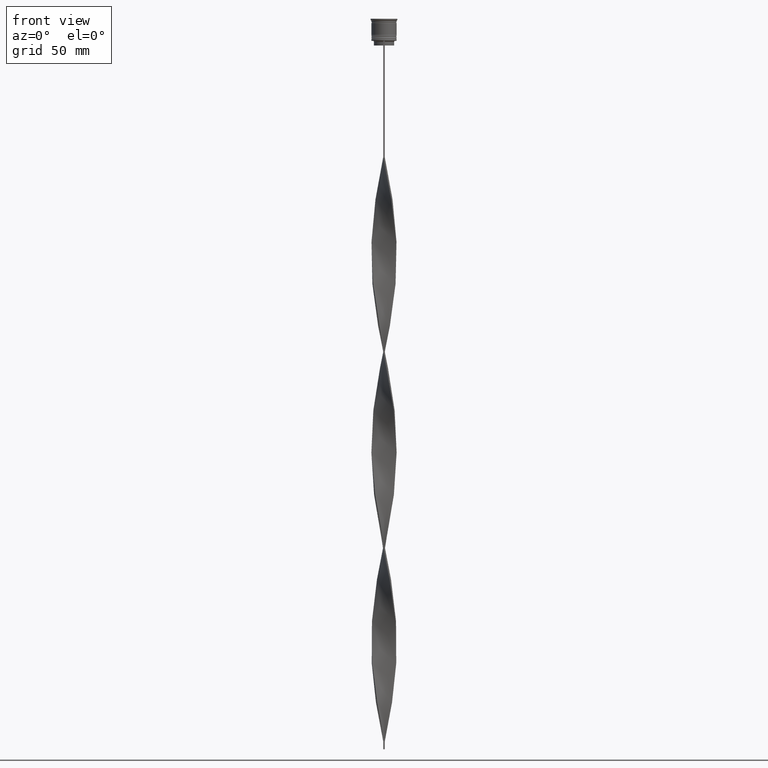
[diagram: clean part render]
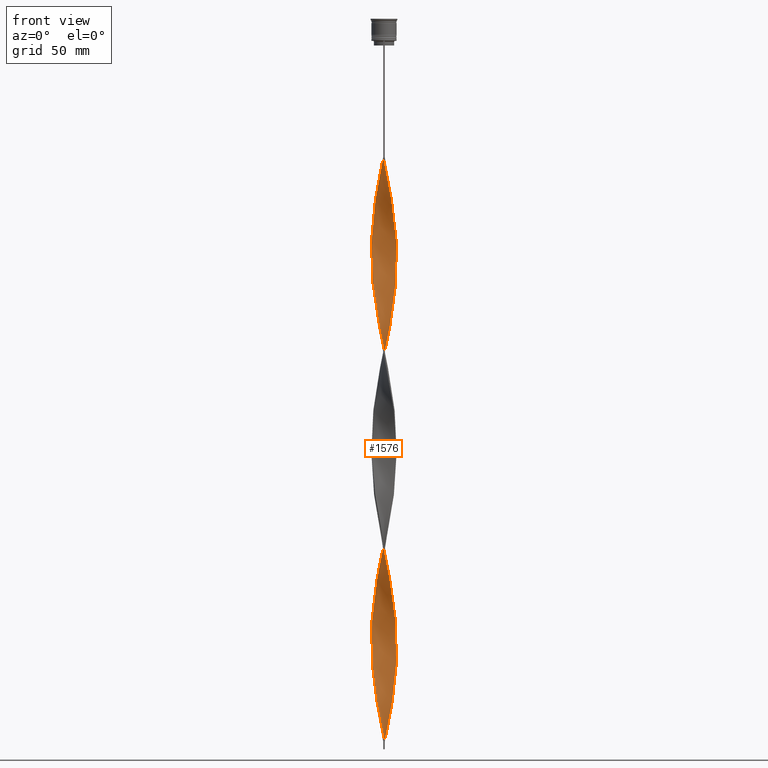
[diagram: same view with one face highlighted and labeled with its STEP entity id]
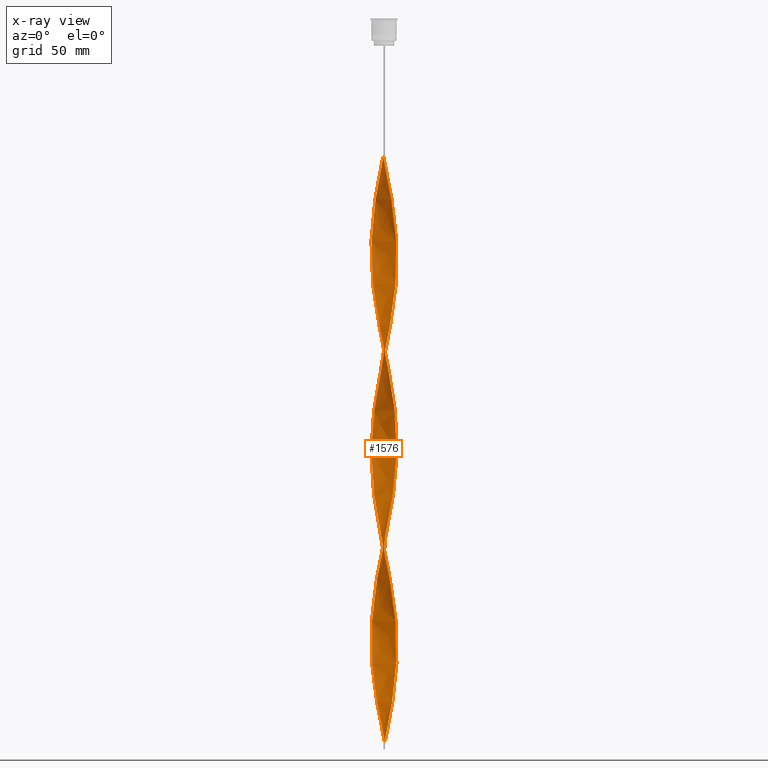
[diagram: x-ray of the same camera — body ghosted, the highlighted face saturated]
A machine part, front view. The second image highlights one B-rep face of the part: STEP entity #1576.
The next image is the same camera in x-ray: the body ghosted, the highlighted face saturated — about 0% of this face is hidden behind the body in this view.
In plain terms, the highlighted face is a freeform B-spline surface patch.
Its self-contained STEP definition (entity closure, byte-faithful):
#5 = CARTESIAN_POINT ( 'NONE',  ( 7.856552120720867727, 1.680833937442848480, -407.9202898550724399 ) ) ;
#10 = CARTESIAN_POINT ( 'NONE',  ( -6.187964285834326006, -5.095007163610167922, -303.0724637681159379 ) ) ;
#24 = CARTESIAN_POINT ( 'NONE',  ( 7.333114266084581168, 3.236577692648030968, -415.9855072463768124 ) ) ;
#29 = CARTESIAN_POINT ( 'NONE',  ( 5.505411142615667330, -5.825843127888297168, -367.5942028985506909 ) ) ;
#42 = CARTESIAN_POINT ( 'NONE',  ( 6.824099305140973293, 4.204957630413717062, -421.3623188405797464 ) ) ;
#48 = CARTESIAN_POINT ( 'NONE',  ( 7.333114266084581168, 3.236577692648030968, -415.9855072463768124 ) ) ;
#67 = CARTESIAN_POINT ( 'NONE',  ( -5.436559199960629307, 5.890146353472331064, -114.8840579710144851 ) ) ;
#73 = CARTESIAN_POINT ( 'NONE',  ( 7.155170220385205226, -3.654333464282639721, -381.0362318840579974 ) ) ;
#75 = EDGE_CURVE ( 'NONE', #2443, #830, #1071, .T. ) ;
#87 = CARTESIAN_POINT ( 'NONE',  ( 5.505411142615667330, 5.825843127888289175, -303.0724637681159379 ) ) ;
#91 = CARTESIAN_POINT ( 'NONE',  ( 7.730944694932269989, -2.117190148262233951, -389.1014492753622562 ) ) ;
#105 = ORIENTED_EDGE ( 'NONE', *, *, #486, .T. ) ;
#107 = CARTESIAN_POINT ( 'NONE',  ( -0.04721499136463833818, -8.034200936960285588, -208.9782608695651902 ) ) ;
#111 = CARTESIAN_POINT ( 'NONE',  ( 5.436559199960635524, 5.890146353472334617, -184.7826086956521578 ) ) ;
#121 = CARTESIAN_POINT ( 'NONE',  ( 4.134100453396767350, -6.889109332278575692, -230.4855072463767840 ) ) ;
#131 = CARTESIAN_POINT ( 'NONE',  ( 5.106912555500778161, 6.202423566746439576, -305.7608695652173196 ) ) ;
#148 = CARTESIAN_POINT ( 'NONE',  ( 7.111726286817905418, -3.738176450121948768, -251.9927536231884631 ) ) ;
#156 = CARTESIAN_POINT ( 'NONE',  ( 0.04721499136463920554, 8.034200936960285588, -332.6449275362318758 ) ) ;
#170 = CARTESIAN_POINT ( 'NONE',  ( -7.947228946841973674, -1.044773691512636438, -152.5217391304347530 ) ) ;
#176 = CARTESIAN_POINT ( 'NONE',  ( 2.122137340211640577, -7.749009424445332250, -219.7318840579710297 ) ) ;
#181 = CARTESIAN_POINT ( 'NONE',  ( 2.728603068017206645, -7.536890956966748156, -104.1304347826086882 ) ) ;
#189 = CARTESIAN_POINT ( 'NONE',  ( -3.645814369522656584, 7.138489867120500598, -104.1304347826086882 ) ) ;
#197 = CARTESIAN_POINT ( 'NONE',  ( -7.934400707984895718, 1.138106060579909817, -389.1014492753622562 ) ) ;
#203 = CARTESIAN_POINT ( 'NONE',  ( 6.536472323464036727, 4.671738810705485356, -176.7173913043478137 ) ) ;
#215 = CARTESIAN_POINT ( 'NONE',  ( 6.247418983026105543, -5.021927523424159823, -125.6376811594202820 ) ) ;
#219 = CARTESIAN_POINT ( 'NONE',  ( -7.856552120720863286, 1.680833937442849368, -139.0797101449275317 ) ) ;
#229 = CARTESIAN_POINT ( 'NONE',  ( -7.875764468519589556, -1.588379043952500291, -402.5434782608696196 ) ) ;
#233 = CARTESIAN_POINT ( 'NONE',  ( -7.934400707984904599, -1.138106060579906043, -281.5652173913043725 ) ) ;
#238 = CARTESIAN_POINT ( 'NONE',  ( -8.018693425164370225, 0.5011683390727743603, -273.4999999999999432 ) ) ;
#243 = CARTESIAN_POINT ( 'NONE',  ( -1.584676165788137636, 7.857404243742519334, -340.7101449275362484 ) ) ;
#255 = CARTESIAN_POINT ( 'NONE',  ( 2.213065603025611949, -7.723532520004569690, -348.7753623188405072 ) ) ;
#259 = CARTESIAN_POINT ( 'NONE',  ( 7.947228946841980779, -1.044773691512637548, -147.1449275362318758 ) ) ;
#262 = CARTESIAN_POINT ( 'NONE',  ( -4.583881302556711113, 6.575563261354189670, -356.8405797101449366 ) ) ;
#275 = CARTESIAN_POINT ( 'NONE',  ( -7.155170220385204338, 3.654333464282641941, -257.3695652173913118 ) ) ;
#282 = CARTESIAN_POINT ( 'NONE',  ( 7.875764468519596662, -1.588379043952502734, -144.4565217391304657 ) ) ;
#285 = CARTESIAN_POINT ( 'NONE',  ( -3.157528285648546706, 7.387870401962427280, -348.7753623188405641 ) ) ;
#290 = CARTESIAN_POINT ( 'NONE',  ( -6.873049228353423246, -4.124462911050403413, -415.9855072463768124 ) ) ;
#298 = CARTESIAN_POINT ( 'NONE',  ( -0.04721499136463313401, 8.034200936960292694, -214.3550724637681242 ) ) ;
#305 = CARTESIAN_POINT ( 'NONE',  ( 5.033662151716659316, 6.262017190429808977, -187.4710144927535964 ) ) ;
#307 = CARTESIAN_POINT ( 'NONE',  ( 7.730944694932264660, 2.117190148262227289, -281.5652173913043725 ) ) ;
#316 = CARTESIAN_POINT ( 'NONE',  ( -5.839456248204613509, -5.518275516514857593, -305.7608695652173196 ) ) ;
#322 = CARTESIAN_POINT ( 'NONE',  ( 7.370647570865074272, -3.150167358427301334, -136.3913043478260931 ) ) ;
#324 = CARTESIAN_POINT ( 'NONE',  ( 2.213065603025612393, 7.723532520004561697, -321.8913043478260647 ) ) ;
#332 = CARTESIAN_POINT ( 'NONE',  ( -7.730944694932262884, -2.117190148262229510, -157.8985507246376585 ) ) ;
#338 = CARTESIAN_POINT ( 'NONE',  ( 5.839456248204609956, 5.518275516514862034, -429.4275362318840621 ) ) ;
#342 = VECTOR ( 'NONE', #2603, 1000.000000000000000 ) ;
#346 = CARTESIAN_POINT ( 'NONE',  ( -3.244140533008800009, -7.350249393928923958, -440.1811594202898164 ) ) ;
#358 = CARTESIAN_POINT ( 'NONE',  ( 6.873049228353429463, -4.124462911050406966, -378.3478260869565020 ) ) ;
#363 = CARTESIAN_POINT ( 'NONE',  ( 7.370647570865074272, -3.150167358427301334, -383.7246376811593791 ) ) ;
#376 = CARTESIAN_POINT ( 'NONE',  ( -8.018693425164364896, -0.5011683390727723619, -149.8333333333332860 ) ) ;
#382 = CARTESIAN_POINT ( 'NONE',  ( -3.157528285648551147, -7.387870401962433498, -321.8913043478260647 ) ) ;
#398 = CARTESIAN_POINT ( 'NONE',  ( -7.705527183036052996, 2.207906436308479492, -136.3913043478260931 ) ) ;
#403 = CARTESIAN_POINT ( 'NONE',  ( 2.122137340211643686, 7.749009424445339356, -450.9347826086956275 ) ) ;
#424 = CARTESIAN_POINT ( 'NONE',  ( 7.947228946841980779, -1.044773691512637548, -394.4782608695651902 ) ) ;
#429 = CARTESIAN_POINT ( 'NONE',  ( 7.586124921344943317, -2.646001252571963835, -386.4130434782609314 ) ) ;
#433 = CARTESIAN_POINT ( 'NONE',  ( 0.4999999999999989453, -7.999999999999996447, -458.9999999999999432 ) ) ;
#442 = ORIENTED_EDGE ( 'NONE', *, *, #1463, .F. ) ;
#444 = CARTESIAN_POINT ( 'NONE',  ( 2.728603068017207534, 7.536890956966740163, -319.2028985507245693 ) ) ;
#448 = CARTESIAN_POINT ( 'NONE',  ( 5.106912555500779050, -6.202423566746448458, -117.5724637681159379 ) ) ;
#459 = CARTESIAN_POINT ( 'NONE',  ( 3.157528285648546706, -7.387870401962427280, -225.1086956521739353 ) ) ;
#464 = CARTESIAN_POINT ( 'NONE',  ( 2.213065603025612393, 7.723532520004562585, -321.8913043478260647 ) ) ;
#469 = CARTESIAN_POINT ( 'NONE',  ( 0.5939902197518079907, -7.993570892838771869, -93.37681159420290555 ) ) ;
#480 = CARTESIAN_POINT ( 'NONE',  ( -6.873049228353423246, -4.124462911050403413, -168.6521739130434696 ) ) ;
#486 = EDGE_CURVE ( 'NONE', #1112, #2443, #1568, .T. ) ;
#491 = CARTESIAN_POINT ( 'NONE',  ( -3.729461898010225429, -7.095147211389621233, -190.1594202898550634 ) ) ;
#504 = CARTESIAN_POINT ( 'NONE',  ( -7.586124921344937988, -2.646001252571960283, -160.5869565217391539 ) ) ;
#510 = CARTESIAN_POINT ( 'NONE',  ( -2.213065603025611949, -7.723532520004562585, -198.2246376811594359 ) ) ;
#514 = CARTESIAN_POINT ( 'NONE',  ( 0.04721499136463627733, -8.034200936960292694, -90.68840579710145278 ) ) ;
#519 = CARTESIAN_POINT ( 'NONE',  ( 1.676915525582295841, -7.838236684360910367, -98.75362318840578268 ) ) ;
#523 = CARTESIAN_POINT ( 'NONE',  ( -6.590928236321648370, -4.594592357818170214, -171.3405797101449366 ) ) ;
#536 = CARTESIAN_POINT ( 'NONE',  ( 7.111726286817910747, 3.738176450121950101, -171.3405797101449366 ) ) ;
#543 = CARTESIAN_POINT ( 'NONE',  ( -7.730944694932262884, -2.117190148262229510, -157.8985507246376585 ) ) ;
#551 = CARTESIAN_POINT ( 'NONE',  ( -6.536472323464030509, 4.671738810705480915, -370.2826086956521863 ) ) ;
#558 = CARTESIAN_POINT ( 'NONE',  ( -3.157528285648551147, -7.387870401962433498, -321.8913043478260647 ) ) ;
#566 = CARTESIAN_POINT ( 'NONE',  ( -6.873049228353427686, 4.124462911050410518, -254.6811594202898448 ) ) ;
#569 = CARTESIAN_POINT ( 'NONE',  ( -5.436559199960629307, 5.890146353472331064, -362.2173913043478137 ) ) ;
#581 = CARTESIAN_POINT ( 'NONE',  ( -7.370647570865074272, 3.150167358427302222, -260.0579710144927503 ) ) ;
#587 = CARTESIAN_POINT ( 'NONE',  ( 0.5000000000000008882, 8.000000000000003553, -211.6666666666666572 ) ) ;
#591 = CARTESIAN_POINT ( 'NONE',  ( -1.047214991364635805, 7.965799063039706418, -338.0217391304347530 ) ) ;
#598 = CARTESIAN_POINT ( 'NONE',  ( -4.660847909256212063, -6.521234297798381263, -432.1159420289855007 ) ) ;
#602 = CARTESIAN_POINT ( 'NONE',  ( -1.140765448138979510, 7.952940848717255484, -219.7318840579710297 ) ) ;
#607 = CARTESIAN_POINT ( 'NONE',  ( 2.639832812930094530, 7.568439913203885538, -200.9130434782608745 ) ) ;
#608 = ORIENTED_EDGE ( 'NONE', *, *, #75, .T. ) ;
#611 = CARTESIAN_POINT ( 'NONE',  ( -7.705527183036052996, 2.207906436308479492, -383.7246376811593791 ) ) ;
#618 = CARTESIAN_POINT ( 'NONE',  ( -7.730944694932262884, -2.117190148262229510, -405.2318840579709445 ) ) ;
#623 = CARTESIAN_POINT ( 'NONE',  ( -7.586124921344943317, 2.646001252571963391, -262.7463768115941889 ) ) ;
#628 = CARTESIAN_POINT ( 'NONE',  ( -0.4999999999999998890, -8.000000000000003553, -88.00000000000000000 ) ) ;
#631 = CARTESIAN_POINT ( 'NONE',  ( -7.705527183036060102, -2.207906436308479936, -286.9420289855072497 ) ) ;
#634 = CARTESIAN_POINT ( 'NONE',  ( 7.155170220385199897, 3.654333464282636612, -289.6304347826086882 ) ) ;
#635 = CARTESIAN_POINT ( 'NONE',  ( 0.5000000000000008882, 8.000000000000003553, -458.9999999999999432 ) ) ;
#646 = CARTESIAN_POINT ( 'NONE',  ( -7.875764468519593109, 1.588379043952506731, -268.1231884057971797 ) ) ;
#653 = CARTESIAN_POINT ( 'NONE',  ( 7.856552120720868615, 1.680833937442848480, -160.5869565217391539 ) ) ;
#655 = CARTESIAN_POINT ( 'NONE',  ( -4.660847909256212063, -6.521234297798381263, -432.1159420289855007 ) ) ;
#663 = CARTESIAN_POINT ( 'NONE',  ( -7.947228946841973674, -1.044773691512636438, -152.5217391304347530 ) ) ;
#669 = CARTESIAN_POINT ( 'NONE',  ( -4.583881302556714665, -6.575563261354195888, -313.8260869565216922 ) ) ;
#680 = CARTESIAN_POINT ( 'NONE',  ( 7.370647570865074272, -3.150167358427301334, -383.7246376811593791 ) ) ;
#686 = CARTESIAN_POINT ( 'NONE',  ( 2.728603068017206645, -7.536890956966748156, -351.4637681159420595 ) ) ;
#705 = CARTESIAN_POINT ( 'NONE',  ( -5.033662151716653987, 6.262017190429803648, -112.1956521739130466 ) ) ;
#709 = CARTESIAN_POINT ( 'NONE',  ( -0.4999999999999998890, -8.000000000000003553, -335.3333333333333144 ) ) ;
#725 = CARTESIAN_POINT ( 'NONE',  ( -2.639832812930093198, 7.568439913203879321, -98.75362318840578268 ) ) ;
#730 = CARTESIAN_POINT ( 'NONE',  ( 6.187964285834324230, 5.095007163610171474, -426.7391304347826235 ) ) ;
#742 = EDGE_CURVE ( 'NONE', #1018, #830, #2607, .T. ) ;
#744 = CARTESIAN_POINT ( 'NONE',  ( -7.934400707984895718, 1.138106060579909817, -141.7681159420289703 ) ) ;
#750 = CARTESIAN_POINT ( 'NONE',  ( -3.729461898010225429, -7.095147211389621233, -437.4927536231883778 ) ) ;
#765 = CARTESIAN_POINT ( 'NONE',  ( -6.247418983026100214, -5.021927523424156270, -174.0289855072463752 ) ) ;
#784 = CARTESIAN_POINT ( 'NONE',  ( 7.333114266084573174, -3.236577692648032745, -254.6811594202898448 ) ) ;
#788 = CARTESIAN_POINT ( 'NONE',  ( 3.645814369522662357, 7.138489867120505039, -195.5362318840579405 ) ) ;
#799 = CARTESIAN_POINT ( 'NONE',  ( -6.536472323464030509, 4.671738810705480915, -122.9492753623188577 ) ) ;
#804 = CARTESIAN_POINT ( 'NONE',  ( -1.047214991364636028, 7.965799063039706418, -338.0217391304347530 ) ) ;
#808 = CARTESIAN_POINT ( 'NONE',  ( 7.875764468519596662, -1.588379043952502512, -144.4565217391304657 ) ) ;
#817 = CARTESIAN_POINT ( 'NONE',  ( -7.370647570865068055, -3.150167358427297781, -163.2753623188405641 ) ) ;
#828 = CARTESIAN_POINT ( 'NONE',  ( 7.155170220385199897, 3.654333464282636612, -289.6304347826086882 ) ) ;
#830 = VERTEX_POINT ( 'NONE', #2474 ) ;
#835 = CARTESIAN_POINT ( 'NONE',  ( 6.873049228353429463, -4.124462911050406966, -131.0144927536231876 ) ) ;
#845 = CARTESIAN_POINT ( 'NONE',  ( -7.705527183036052996, 2.207906436308479492, -136.3913043478260931 ) ) ;
#853 = CARTESIAN_POINT ( 'NONE',  ( 4.583881302556708448, -6.575563261354191447, -233.1739130434782510 ) ) ;
#858 = CARTESIAN_POINT ( 'NONE',  ( 7.705527183036060102, 2.207906436308480380, -163.2753623188405641 ) ) ;
#864 = CARTESIAN_POINT ( 'NONE',  ( 5.505411142615667330, -5.825843127888297168, -120.2608695652173907 ) ) ;
#867 = CARTESIAN_POINT ( 'NONE',  ( -5.839456248204605515, 5.518275516514856704, -117.5724637681159521 ) ) ;
#875 = CARTESIAN_POINT ( 'NONE',  ( -4.214783263011646852, -6.840045028850322062, -434.8043478260869961 ) ) ;
#880 = CARTESIAN_POINT ( 'NONE',  ( -7.333114266084582944, -3.236577692648026527, -292.3188405797101268 ) ) ;
#890 = CARTESIAN_POINT ( 'NONE',  ( 7.856552120720863286, -1.680833937442848036, -262.7463768115941889 ) ) ;
#891 = CARTESIAN_POINT ( 'NONE',  ( 0.4999999999999989453, -7.999999999999996447, -458.9999999999999432 ) ) ;
#907 = CARTESIAN_POINT ( 'NONE',  ( 1.676915525582295841, -7.838236684360910367, -346.0869565217391255 ) ) ;
#916 = CARTESIAN_POINT ( 'NONE',  ( -6.824099305140974181, -4.204957630413716174, -297.6956521739130039 ) ) ;
#919 = CARTESIAN_POINT ( 'NONE',  ( 7.586124921344937988, 2.646001252571958950, -284.2536231884058111 ) ) ;
#926 = CARTESIAN_POINT ( 'NONE',  ( -6.590928236321648370, -4.594592357818170214, -418.6739130434783078 ) ) ;
#930 = CARTESIAN_POINT ( 'NONE',  ( -4.583881302556714665, -6.575563261354195888, -313.8260869565216922 ) ) ;
#938 = CARTESIAN_POINT ( 'NONE',  ( -7.947228946841980779, 1.044773691512640434, -270.8115942028985614 ) ) ;
#943 = CARTESIAN_POINT ( 'NONE',  ( 8.015471360206644746, -0.04710492232210114483, -270.8115942028985614 ) ) ;
#949 = CARTESIAN_POINT ( 'NONE',  ( -7.111726286817904530, 3.738176450121948324, -375.6594202898551771 ) ) ;
#954 = CARTESIAN_POINT ( 'NONE',  ( -5.903909729730557387, 5.449262689030150320, -246.6159420289854722 ) ) ;
#957 = CARTESIAN_POINT ( 'NONE',  ( -8.012249295248937031, -0.5953781837169641600, -278.8768115942028771 ) ) ;
#959 = CARTESIAN_POINT ( 'NONE',  ( -7.370647570865068055, -3.150167358427297781, -410.6086956521738216 ) ) ;
#965 = CARTESIAN_POINT ( 'NONE',  ( 0.4999999999999989453, -7.999999999999996447, -458.9999999999999432 ) ) ;
#972 = CARTESIAN_POINT ( 'NONE',  ( -2.213065603025611949, 7.723532520004569690, -225.1086956521739353 ) ) ;
#981 = CARTESIAN_POINT ( 'NONE',  ( -8.015471360206651852, -0.04710492232209864683, -276.1884057971014386 ) ) ;
#985 = CARTESIAN_POINT ( 'NONE',  ( -3.645814369522656584, 7.138489867120500598, -351.4637681159420595 ) ) ;
#997 = CARTESIAN_POINT ( 'NONE',  ( -1.047214991364636028, 7.965799063039706418, -90.68840579710145278 ) ) ;
#1004 = CARTESIAN_POINT ( 'NONE',  ( -6.247418983026105543, 5.021927523424160711, -249.3043478260869392 ) ) ;
#1016 = CARTESIAN_POINT ( 'NONE',  ( -0.4999999999999998890, 7.999999999999996447, -88.00000000000000000 ) ) ;
#1018 = VERTEX_POINT ( 'NONE', #635 ) ;
#1021 = CARTESIAN_POINT ( 'NONE',  ( -1.047214991364639802, -7.965799063039713523, -332.6449275362318758 ) ) ;
#1034 = CARTESIAN_POINT ( 'NONE',  ( -1.584676165788137636, 7.857404243742519334, -93.37681159420290555 ) ) ;
#1039 = CARTESIAN_POINT ( 'NONE',  ( 8.015471360206651852, 0.04710492232209777946, -399.8550724637680673 ) ) ;
#1057 = CARTESIAN_POINT ( 'NONE',  ( 2.639832812930094530, 7.568439913203885538, -448.2463768115941889 ) ) ;
#1062 = CARTESIAN_POINT ( 'NONE',  ( -6.536472323464036727, -4.671738810705484468, -300.3840579710145562 ) ) ;
#1071 =( BOUNDED_CURVE ( )  B_SPLINE_CURVE ( 2, ( #3688, #2473, #3186, #1857, #3168, #3148, #189, #2122, #2165, #2207, #3527, #867, #2884, #799, #1478, #4190, #2454, #1528, #845, #219, #2857, #2140, #1201, #1223, #170, #3488, #543, #504, #817, #3466, #480, #523, #2520, #3804, #3850, #4210, #1877, #3120, #1502, #1837, #3211, #2809, #2829, #1817, #1554, #2542, #3832, #3875, #3447, #2499, #4140, #459, #1794, #121, #2187, #4118, #4162, #1455, #2788, #1133, #3785, #148, #1178, #1153, #3506, #890, #3904, #3599, #943, #1941, #2259, #4232, #307, #919, #3558, #634, #2629, #4281, #1243, #2610, #1592, #3273, #1639, #3965, #2969, #3249, #3315, #324, #4260, #3581, #2590, #2926, #1270, #591, #243, #2234, #2652, #285, #985, #1325, #262, #3617, #569, #3923, #2278, #1303, #1287, #3943, #4323, #1572, #611, #1657, #1618, #1989, #2903, #1903, #3232, #2952, #1922, #2986, #959, #2294, #2320, #1968, #3297, #2564, #4301, #3640, #655, #2051, #750, #346, #3095, #2099, #2354, #3678, #3377, #3423, #433 ),
 .UNSPECIFIED., .F., .T. ) 
 B_SPLINE_CURVE_WITH_KNOTS ( ( 3, 2, 2, 2, 2, 2, 2, 2, 2, 2, 2, 2, 2, 2, 2, 2, 2, 2, 2, 2, 2, 2, 2, 2, 2, 2, 2, 2, 2, 2, 2, 2, 2, 2, 2, 2, 2, 2, 2, 2, 2, 2, 2, 2, 2, 2, 2, 2, 2, 2, 2, 2, 2, 2, 2, 2, 2, 2, 2, 2, 2, 2, 2, 2, 2, 2, 2, 2, 2, 3 ),
 ( 0.000000000000000000, 0.01086956521739130405, 0.02173913043478260809, 0.03260869565217391214, 0.04347826086956521618, 0.05434782608695652023, 0.06521739130434782428, 0.07608695652173913526, 0.08695652173913043237, 0.09782608695652174335, 0.1086956521739130405, 0.1195652173913043653, 0.1304347826086956486, 0.1413043478260869457, 0.1521739130434782705, 0.1630434782608695676, 0.1739130434782608647, 0.1847826086956521896, 0.1956521739130434867, 0.2065217391304347838, 0.2173913043478260809, 0.2282608695652173780, 0.2391304347826087306, 0.2500000000000000000, 0.2608695652173912971, 0.2717391304347825942, 0.2826086956521738913, 0.2934782608695652439, 0.3043478260869565410, 0.3152173913043478382, 0.3260869565217391353, 0.3369565217391304324, 0.3478260869565217295, 0.3586956521739130266, 0.3695652173913043792, 0.3804347826086956208, 0.3913043478260869734, 0.4021739130434782705, 0.4130434782608695676, 0.4239130434782609202, 0.4347826086956521618, 0.4456521739130434590, 0.4565217391304347561, 0.4673913043478261087, 0.4782608695652174613, 0.4891304347826087029, 0.5000000000000000000, 0.5108695652173913526, 0.5217391304347825942, 0.5326086956521739468, 0.5434782608695651884, 0.5543478260869565410, 0.5652173913043477826, 0.5760869565217391353, 0.5869565217391304879, 0.5978260869565217295, 0.6086956521739130821, 0.6195652173913043237, 0.6304347826086956763, 0.6413043478260869179, 0.6521739130434782705, 0.6630434782608695121, 0.6739130434782608647, 0.6847826086956522174, 0.6956521739130434590, 0.7065217391304349226, 0.7173913043478260532, 0.7282608695652174058, 0.7391304347826087584, 0.7500000000000000000 ),
 .UNSPECIFIED. ) 
 CURVE ( )  GEOMETRIC_REPRESENTATION_ITEM ( )  RATIONAL_B_SPLINE_CURVE ( ( 1.000000000000000000, 0.9976687691905391508, 1.000000000000000000, 0.9976687691905391508, 1.000000000000000000, 0.9976687691905391508, 1.000000000000000000, 0.9976687691905391508, 1.000000000000000000, 0.9976687691905391508, 1.000000000000000000, 0.9976687691905391508, 1.000000000000000000, 0.9976687691905391508, 1.000000000000000000, 0.9976687691905391508, 1.000000000000000000, 0.9976687691905391508, 1.000000000000000000, 0.9976687691905391508, 1.000000000000000000, 0.9976687691905391508, 1.000000000000000000, 0.9976687691905391508, 1.000000000000000000, 0.9976687691905391508, 1.000000000000000000, 0.9976687691905391508, 1.000000000000000000, 0.9976687691905391508, 1.000000000000000000, 0.9976687691905391508, 1.000000000000000000, 0.9976687691905391508, 1.000000000000000000, 0.9976687691905391508, 1.000000000000000000, 0.9976687691905391508, 1.000000000000000000, 0.9976687691905391508, 1.000000000000000000, 0.9976687691905391508, 1.000000000000000000, 0.9976687691905391508, 1.000000000000000000, 0.9976687691905391508, 1.000000000000000000, 0.9976687691905391508, 1.000000000000000000, 0.9976687691905391508, 1.000000000000000000, 0.9976687691905391508, 1.000000000000000000, 0.9976687691905391508, 1.000000000000000000, 0.9976687691905391508, 1.000000000000000000, 0.9976687691905391508, 1.000000000000000000, 0.9976687691905391508, 1.000000000000000000, 0.9976687691905391508, 1.000000000000000000, 0.9976687691905391508, 1.000000000000000000, 0.9976687691905391508, 1.000000000000000000, 0.9976687691905391508, 1.000000000000000000, 0.9976687691905391508, 1.000000000000000000, 0.9976687691905391508, 1.000000000000000000, 0.9976687691905391508, 1.000000000000000000, 0.9976687691905391508, 1.000000000000000000, 0.9976687691905391508, 1.000000000000000000, 0.9976687691905391508, 1.000000000000000000, 0.9976687691905391508, 1.000000000000000000, 0.9976687691905391508, 1.000000000000000000, 0.9976687691905391508, 1.000000000000000000, 0.9976687691905391508, 1.000000000000000000, 0.9976687691905391508, 1.000000000000000000, 0.9976687691905391508, 1.000000000000000000, 0.9976687691905391508, 1.000000000000000000, 0.9976687691905391508, 1.000000000000000000, 0.9976687691905391508, 1.000000000000000000, 0.9976687691905391508, 1.000000000000000000, 0.9976687691905391508, 1.000000000000000000, 0.9976687691905391508, 1.000000000000000000, 0.9976687691905391508, 1.000000000000000000, 0.9976687691905391508, 1.000000000000000000, 0.9976687691905391508, 1.000000000000000000, 0.9976687691905391508, 1.000000000000000000, 0.9976687691905391508, 1.000000000000000000, 0.9976687691905391508, 1.000000000000000000, 0.9976687691905391508, 1.000000000000000000, 0.9976687691905391508, 1.000000000000000000, 0.9976687691905391508, 1.000000000000000000, 0.9976687691905391508, 1.000000000000000000, 0.9976687691905391508, 1.000000000000000000, 0.9976687691905391508, 1.000000000000000000, 0.9976687691905391508, 1.000000000000000000, 0.9976687691905391508, 1.000000000000000000, 0.9976687691905391508, 1.000000000000000000, 0.9976687691905391508, 1.000000000000000000, 0.9976687691905391508, 1.000000000000000000 ) ) 
 REPRESENTATION_ITEM ( '' )  );
#1078 = CARTESIAN_POINT ( 'NONE',  ( 7.705527183036060102, 2.207906436308480380, -410.6086956521738216 ) ) ;
#1083 = CARTESIAN_POINT ( 'NONE',  ( 6.873049228353429463, -4.124462911050406966, -378.3478260869565020 ) ) ;
#1096 = CARTESIAN_POINT ( 'NONE',  ( 4.214783263011647740, 6.840045028850321174, -311.1376811594204241 ) ) ;
#1101 = CARTESIAN_POINT ( 'NONE',  ( 2.213065603025611949, -7.723532520004569690, -101.4420289855072497 ) ) ;
#1112 = VERTEX_POINT ( 'NONE', #3030 ) ;
#1123 = CARTESIAN_POINT ( 'NONE',  ( -1.140765448138979954, -7.952940848717248379, -203.6014492753623415 ) ) ;
#1133 = CARTESIAN_POINT ( 'NONE',  ( 6.536472323464028733, -4.671738810705482692, -246.6159420289854722 ) ) ;
#1139 = CARTESIAN_POINT ( 'NONE',  ( -0.4999999999999998890, 7.999999999999996447, -335.3333333333333144 ) ) ;
#1150 = CARTESIAN_POINT ( 'NONE',  ( -0.4999999999999998890, -8.000000000000003553, -88.00000000000000000 ) ) ;
#1153 = CARTESIAN_POINT ( 'NONE',  ( 7.554502245351245371, -2.734978935174111836, -257.3695652173913118 ) ) ;
#1160 = CARTESIAN_POINT ( 'NONE',  ( 7.111726286817904530, -3.738176450121948324, -251.9927536231884915 ) ) ;
#1165 = CARTESIAN_POINT ( 'NONE',  ( 4.660847909256214727, -6.521234297798388369, -114.8840579710144851 ) ) ;
#1178 = CARTESIAN_POINT ( 'NONE',  ( 7.333114266084573174, -3.236577692648032745, -254.6811594202898448 ) ) ;
#1179 = CARTESIAN_POINT ( 'NONE',  ( 0.5000000000000008882, 8.000000000000003553, -458.9999999999999432 ) ) ;
#1187 = CARTESIAN_POINT ( 'NONE',  ( -5.505411142615663778, -5.825843127888290951, -179.4057971014492807 ) ) ;
#1192 = CARTESIAN_POINT ( 'NONE',  ( 7.947228946841980779, -1.044773691512637548, -147.1449275362318758 ) ) ;
#1197 = CARTESIAN_POINT ( 'NONE',  ( 4.214783263011651293, -6.840045028850329167, -112.1956521739130466 ) ) ;
#1201 = CARTESIAN_POINT ( 'NONE',  ( -8.015471360206644746, 0.04710492232209832070, -147.1449275362318758 ) ) ;
#1209 = CARTESIAN_POINT ( 'NONE',  ( -2.639832812930093198, 7.568439913203879321, -346.0869565217391255 ) ) ;
#1215 = CARTESIAN_POINT ( 'NONE',  ( 0.04721499136463627733, -8.034200936960292694, -338.0217391304347530 ) ) ;
#1223 = CARTESIAN_POINT ( 'NONE',  ( -8.018693425164364896, -0.5011683390727723619, -149.8333333333333144 ) ) ;
#1231 = CARTESIAN_POINT ( 'NONE',  ( -6.247418983026100214, -5.021927523424156270, -421.3623188405797464 ) ) ;
#1238 = CARTESIAN_POINT ( 'NONE',  ( -3.729461898010223209, 7.095147211389630115, -233.1739130434782510 ) ) ;
#1242 = CARTESIAN_POINT ( 'NONE',  ( -7.333114266084582944, -3.236577692648026527, -292.3188405797101268 ) ) ;
#1243 = CARTESIAN_POINT ( 'NONE',  ( 6.247418983026101102, 5.021927523424155382, -297.6956521739130039 ) ) ;
#1251 = CARTESIAN_POINT ( 'NONE',  ( -1.584676165788137636, 7.857404243742519334, -340.7101449275362484 ) ) ;
#1259 = CARTESIAN_POINT ( 'NONE',  ( -5.436559199960636413, -5.890146353472333729, -308.4492753623188150 ) ) ;
#1266 = CARTESIAN_POINT ( 'NONE',  ( 4.134100453396771790, 6.889109332278581022, -192.8478260869565020 ) ) ;
#1270 = CARTESIAN_POINT ( 'NONE',  ( -0.4999999999999998890, 7.999999999999996447, -335.3333333333333144 ) ) ;
#1276 = CARTESIAN_POINT ( 'NONE',  ( -5.903909729730553835, -5.449262689030142326, -424.0507246376811281 ) ) ;
#1279 = CARTESIAN_POINT ( 'NONE',  ( -8.012249295248937031, -0.5953781837169641600, -278.8768115942028203 ) ) ;
#1285 = CARTESIAN_POINT ( 'NONE',  ( -2.728603068017204425, 7.536890956966749044, -227.7971014492753454 ) ) ;
#1287 = CARTESIAN_POINT ( 'NONE',  ( -6.824099305140966187, 4.204957630413713510, -372.9710144927536248 ) ) ;
#1292 = CARTESIAN_POINT ( 'NONE',  ( -5.106912555500773720, -6.202423566746443129, -429.4275362318841189 ) ) ;
#1295 = CARTESIAN_POINT ( 'NONE',  ( 2.122137340211644130, 7.749009424445339356, -203.6014492753623415 ) ) ;
#1300 = CARTESIAN_POINT ( 'NONE',  ( 6.824099305140973293, 4.204957630413717062, -174.0289855072463752 ) ) ;
#1303 = CARTESIAN_POINT ( 'NONE',  ( -6.536472323464030509, 4.671738810705480915, -370.2826086956521863 ) ) ;
#1313 = CARTESIAN_POINT ( 'NONE',  ( 6.536472323464036727, 4.671738810705485356, -424.0507246376811281 ) ) ;
#1322 = CARTESIAN_POINT ( 'NONE',  ( 6.590928236321652811, -4.594592357818173767, -128.3260869565217206 ) ) ;
#1325 = CARTESIAN_POINT ( 'NONE',  ( -4.134100453396768238, 6.889109332278574804, -354.1521739130434980 ) ) ;
#1336 = CARTESIAN_POINT ( 'NONE',  ( -6.824099305140966187, 4.204957630413713510, -125.6376811594202820 ) ) ;
#1341 = CARTESIAN_POINT ( 'NONE',  ( 1.676915525582295841, -7.838236684360910367, -346.0869565217391255 ) ) ;
#1357 = CARTESIAN_POINT ( 'NONE',  ( 5.033662151716659316, 6.262017190429808977, -434.8043478260869961 ) ) ;
#1362 = CARTESIAN_POINT ( 'NONE',  ( 4.660847909256214727, -6.521234297798388369, -362.2173913043478137 ) ) ;
#1374 = CARTESIAN_POINT ( 'NONE',  ( -7.370647570865068055, -3.150167358427297781, -163.2753623188405641 ) ) ;
#1382 = CARTESIAN_POINT ( 'NONE',  ( 6.824099305140973293, 4.204957630413717062, -421.3623188405797464 ) ) ;
#1402 = CARTESIAN_POINT ( 'NONE',  ( -5.839456248204605515, 5.518275516514855816, -117.5724637681159379 ) ) ;
#1409 = CARTESIAN_POINT ( 'NONE',  ( 7.554502245351253364, 2.734978935174110948, -413.2971014492753739 ) ) ;
#1422 = CARTESIAN_POINT ( 'NONE',  ( -2.728603068017206645, -7.536890956966740163, -195.5362318840579405 ) ) ;
#1426 = CARTESIAN_POINT ( 'NONE',  ( 3.157528285648550259, 7.387870401962433498, -445.5579710144927503 ) ) ;
#1438 = CARTESIAN_POINT ( 'NONE',  ( 1.140765448138977511, 7.952940848717248379, -327.2681159420290555 ) ) ;
#1442 = CARTESIAN_POINT ( 'NONE',  ( 7.554502245351254253, 2.734978935174110948, -165.9637681159420595 ) ) ;
#1455 = CARTESIAN_POINT ( 'NONE',  ( 5.839456248204604627, -5.518275516514858481, -241.2391304347826235 ) ) ;
#1463 = EDGE_CURVE ( 'NONE', #1112, #1018, #2079, .T. ) ;
#1465 = CARTESIAN_POINT ( 'NONE',  ( 0.5939902197518118765, 7.993570892838764763, -329.9565217391304373 ) ) ;
#1478 = CARTESIAN_POINT ( 'NONE',  ( -6.824099305140966187, 4.204957630413713510, -125.6376811594202820 ) ) ;
#1485 = CARTESIAN_POINT ( 'NONE',  ( 6.536472323464028733, -4.671738810705482692, -246.6159420289854722 ) ) ;
#1502 = CARTESIAN_POINT ( 'NONE',  ( -3.729461898010225429, -7.095147211389621233, -190.1594202898550634 ) ) ;
#1509 = CARTESIAN_POINT ( 'NONE',  ( 2.639832812930090977, -7.568439913203879321, -222.4202898550724399 ) ) ;
#1528 = CARTESIAN_POINT ( 'NONE',  ( -7.554502245351246259, 2.734978935174109616, -133.7028985507246546 ) ) ;
#1539 = CARTESIAN_POINT ( 'NONE',  ( -3.157528285648546706, 7.387870401962427280, -348.7753623188405072 ) ) ;
#1543 = CARTESIAN_POINT ( 'NONE',  ( 6.187964285834324230, 5.095007163610171474, -179.4057971014492807 ) ) ;
#1551 = CARTESIAN_POINT ( 'NONE',  ( 2.213065603025611949, -7.723532520004569690, -101.4420289855072497 ) ) ;
#1554 = CARTESIAN_POINT ( 'NONE',  ( -0.5939902197518075466, -7.993570892838764763, -206.2898550724637516 ) ) ;
#1566 = CARTESIAN_POINT ( 'NONE',  ( -0.5939902197518064364, 7.993570892838771869, -217.0434782608695627 ) ) ;
#1568 = LINE ( 'NONE', #628, #342 ) ;
#1570 = CARTESIAN_POINT ( 'NONE',  ( -7.934400707984904599, -1.138106060579906043, -281.5652173913043725 ) ) ;
#1572 = CARTESIAN_POINT ( 'NONE',  ( -7.554502245351246259, 2.734978935174109616, -381.0362318840579974 ) ) ;
#1573 = CARTESIAN_POINT ( 'NONE',  ( 0.5000000000000002220, 2.666666666666670515, -458.9999999999999432 ) ) ;
#1576 = ADVANCED_FACE ( 'NONE', ( #2821 ), #3140, .T. ) ;
#1585 = CARTESIAN_POINT ( 'NONE',  ( 4.214783263011650405, -6.840045028850329167, -359.5289855072463752 ) ) ;
#1590 = CARTESIAN_POINT ( 'NONE',  ( -4.214783263011650405, 6.840045028850329167, -235.8623188405797464 ) ) ;
#1592 = CARTESIAN_POINT ( 'NONE',  ( 5.505411142615667330, 5.825843127888289175, -303.0724637681159379 ) ) ;
#1600 = CARTESIAN_POINT ( 'NONE',  ( -7.586124921344937988, -2.646001252571960283, -407.9202898550724399 ) ) ;
#1610 = CARTESIAN_POINT ( 'NONE',  ( -6.247418983026105543, 5.021927523424160711, -249.3043478260869392 ) ) ;
#1617 = CARTESIAN_POINT ( 'NONE',  ( 3.157528285648550259, 7.387870401962433498, -198.2246376811594359 ) ) ;
#1618 = CARTESIAN_POINT ( 'NONE',  ( -7.934400707984895718, 1.138106060579909817, -389.1014492753622562 ) ) ;
#1624 = CARTESIAN_POINT ( 'NONE',  ( -7.856552120720862398, 1.680833937442849368, -386.4130434782609882 ) ) ;
#1629 = CARTESIAN_POINT ( 'NONE',  ( 4.660847909256214727, -6.521234297798388369, -362.2173913043478137 ) ) ;
#1636 = CARTESIAN_POINT ( 'NONE',  ( 8.018693425164370225, -0.5011683390727733611, -149.8333333333333144 ) ) ;
#1639 = CARTESIAN_POINT ( 'NONE',  ( 4.660847909256212951, 6.521234297798380375, -308.4492753623188150 ) ) ;
#1648 = CARTESIAN_POINT ( 'NONE',  ( 2.639832812930094530, 7.568439913203885538, -200.9130434782608745 ) ) ;
#1655 = CARTESIAN_POINT ( 'NONE',  ( 5.436559199960635524, 5.890146353472334617, -184.7826086956521578 ) ) ;
#1657 = CARTESIAN_POINT ( 'NONE',  ( -7.856552120720863286, 1.680833937442849368, -386.4130434782609314 ) ) ;
#1670 = CARTESIAN_POINT ( 'NONE',  ( 7.586124921344943317, -2.646001252571964280, -386.4130434782609882 ) ) ;
#1679 = CARTESIAN_POINT ( 'NONE',  ( 7.856552120720868615, 1.680833937442848480, -407.9202898550724399 ) ) ;
#1694 = CARTESIAN_POINT ( 'NONE',  ( 5.839456248204610844, 5.518275516514861145, -429.4275362318841189 ) ) ;
#1699 = CARTESIAN_POINT ( 'NONE',  ( 7.934400707984902823, 1.138106060579908485, -405.2318840579709445 ) ) ;
#1713 = CARTESIAN_POINT ( 'NONE',  ( -7.856552120720862398, 1.680833937442849368, -139.0797101449275317 ) ) ;
#1719 = CARTESIAN_POINT ( 'NONE',  ( -5.839456248204612621, -5.518275516514858481, -305.7608695652173765 ) ) ;
#1721 = EDGE_LOOP ( 'NONE', ( #105, #608, #1863, #442 ) ) ;
#1734 = CARTESIAN_POINT ( 'NONE',  ( -6.187964285834317124, 5.095007163610168810, -120.2608695652173907 ) ) ;
#1742 = CARTESIAN_POINT ( 'NONE',  ( 2.213065603025611949, -7.723532520004569690, -348.7753623188405641 ) ) ;
#1760 = CARTESIAN_POINT ( 'NONE',  ( 7.856552120720862398, -1.680833937442848036, -262.7463768115941889 ) ) ;
#1764 = CARTESIAN_POINT ( 'NONE',  ( 5.106912555500779050, -6.202423566746448458, -364.9057971014491955 ) ) ;
#1780 = CARTESIAN_POINT ( 'NONE',  ( -5.903909729730553835, -5.449262689030142326, -176.7173913043478137 ) ) ;
#1794 = CARTESIAN_POINT ( 'NONE',  ( 3.645814369522654363, -7.138489867120501486, -227.7971014492753454 ) ) ;
#1800 = CARTESIAN_POINT ( 'NONE',  ( 7.705527183036052996, -2.207906436308480380, -260.0579710144927503 ) ) ;
#1801 = CARTESIAN_POINT ( 'NONE',  ( -0.4999999999999998890, 7.999999999999996447, -88.00000000000000000 ) ) ;
#1805 = CARTESIAN_POINT ( 'NONE',  ( 7.370647570865074272, -3.150167358427301334, -136.3913043478260931 ) ) ;
#1817 = CARTESIAN_POINT ( 'NONE',  ( -1.140765448138980176, -7.952940848717247491, -203.6014492753623415 ) ) ;
#1826 = CARTESIAN_POINT ( 'NONE',  ( 7.947228946841973674, 1.044773691512637104, -276.1884057971014386 ) ) ;
#1837 = CARTESIAN_POINT ( 'NONE',  ( -3.244140533008800009, -7.350249393928923958, -192.8478260869565020 ) ) ;
#1846 = CARTESIAN_POINT ( 'NONE',  ( 0.4999999999999989453, -7.999999999999996447, -211.6666666666666572 ) ) ;
#1851 = CARTESIAN_POINT ( 'NONE',  ( 1.140765448138979288, -7.952940848717255484, -96.06521739130434412 ) ) ;
#1857 = CARTESIAN_POINT ( 'NONE',  ( -2.122137340211640133, 7.749009424445332250, -96.06521739130434412 ) ) ;
#1863 = ORIENTED_EDGE ( 'NONE', *, *, #742, .F. ) ;
#1866 = CARTESIAN_POINT ( 'NONE',  ( 8.012249295248937031, 0.5953781837169684898, -155.2101449275362199 ) ) ;
#1877 = CARTESIAN_POINT ( 'NONE',  ( -4.660847909256212063, -6.521234297798381263, -184.7826086956521578 ) ) ;
#1887 = CARTESIAN_POINT ( 'NONE',  ( -4.583881302556711113, 6.575563261354189670, -356.8405797101449366 ) ) ;
#1894 = CARTESIAN_POINT ( 'NONE',  ( -8.018693425164372002, 0.5011683390727744714, -273.4999999999999432 ) ) ;
#1901 = CARTESIAN_POINT ( 'NONE',  ( -7.370647570865074272, 3.150167358427302222, -260.0579710144927503 ) ) ;
#1903 = CARTESIAN_POINT ( 'NONE',  ( -8.018693425164364896, -0.5011683390727723619, -397.1666666666666856 ) ) ;
#1913 = CARTESIAN_POINT ( 'NONE',  ( -0.4999999999999998890, -8.000000000000003553, -335.3333333333333144 ) ) ;
#1919 = CARTESIAN_POINT ( 'NONE',  ( 7.586124921344943317, -2.646001252571963835, -139.0797101449275317 ) ) ;
#1922 = CARTESIAN_POINT ( 'NONE',  ( -7.730944694932262884, -2.117190148262229510, -405.2318840579709445 ) ) ;
#1929 = CARTESIAN_POINT ( 'NONE',  ( -1.140765448138979954, -7.952940848717248379, -450.9347826086956275 ) ) ;
#1933 = CARTESIAN_POINT ( 'NONE',  ( -2.639832812930095418, -7.568439913203885538, -324.5797101449275033 ) ) ;
#1939 = CARTESIAN_POINT ( 'NONE',  ( 1.584676165788138968, 7.857404243742526440, -206.2898550724637516 ) ) ;
#1941 = CARTESIAN_POINT ( 'NONE',  ( 8.018693425164364896, 0.5011683390727713627, -273.4999999999999432 ) ) ;
#1952 = CARTESIAN_POINT ( 'NONE',  ( -5.839456248204605515, 5.518275516514855816, -364.9057971014492523 ) ) ;
#1959 = CARTESIAN_POINT ( 'NONE',  ( -7.554502245351254253, -2.734978935174111836, -289.6304347826086882 ) ) ;
#1967 = CARTESIAN_POINT ( 'NONE',  ( -4.660847909256214727, 6.521234297798387480, -238.5507246376811565 ) ) ;
#1968 = CARTESIAN_POINT ( 'NONE',  ( -6.590928236321648370, -4.594592357818170214, -418.6739130434783078 ) ) ;
#1980 = CARTESIAN_POINT ( 'NONE',  ( -7.705527183036060102, -2.207906436308479936, -286.9420289855072497 ) ) ;
#1988 = CARTESIAN_POINT ( 'NONE',  ( 2.122137340211643686, 7.749009424445339356, -203.6014492753623415 ) ) ;
#1989 = CARTESIAN_POINT ( 'NONE',  ( -8.012249295248929926, 0.5953781837169687119, -391.7898550724637516 ) ) ;
#1999 = CARTESIAN_POINT ( 'NONE',  ( -7.875764468519589556, -1.588379043952500291, -155.2101449275362199 ) ) ;
#2004 = CARTESIAN_POINT ( 'NONE',  ( 3.244140533008801786, -7.350249393928931063, -354.1521739130434980 ) ) ;
#2019 = CARTESIAN_POINT ( 'NONE',  ( 6.247418983026105543, -5.021927523424159823, -372.9710144927536248 ) ) ;
#2027 = CARTESIAN_POINT ( 'NONE',  ( 4.214783263011651293, -6.840045028850329167, -359.5289855072463752 ) ) ;
#2043 = CARTESIAN_POINT ( 'NONE',  ( -7.111726286817904530, 3.738176450121948324, -128.3260869565217206 ) ) ;
#2049 = CARTESIAN_POINT ( 'NONE',  ( 8.012249295248937031, 0.5953781837169684898, -402.5434782608696196 ) ) ;
#2051 = CARTESIAN_POINT ( 'NONE',  ( -4.214783263011647740, -6.840045028850322950, -434.8043478260869392 ) ) ;
#2063 = CARTESIAN_POINT ( 'NONE',  ( -4.134100453396768238, 6.889109332278574804, -106.8188405797101268 ) ) ;
#2069 = CARTESIAN_POINT ( 'NONE',  ( 3.729461898010225873, -7.095147211389628339, -356.8405797101449366 ) ) ;
#2079 =( BOUNDED_CURVE ( )  B_SPLINE_CURVE ( 2, ( #1150, #3802, #3504, #3486, #519, #1551, #3184, #4185, #2878, #1197, #2518, #3847, #864, #2204, #215, #1322, #2257, #2984, #322, #1919, #2650, #282, #259, #1636, #3551, #3596, #3638, #653, #2319, #4317, #3579, #2922, #1300, #3899, #2967, #2293, #1655, #305, #4278, #1266, #4230, #1617, #607, #1988, #1939, #2273, #587, #4298, #3985, #2950, #3269, #3313, #1285, #2606, #3247, #1590, #1967, #2627, #3919, #3960, #1004, #3612, #566, #3229, #1901, #4254, #2587, #3941, #938, #238, #981, #957, #1570, #2902, #631, #3295, #1242, #2558, #916, #1062, #10, #1719, #2352, #3658, #669, #3008, #3091, #382, #3027, #3698, #2334, #1021, #709, #2371, #3374, #3674, #1341, #1742, #686, #2004, #2069, #2027, #1362, #1764, #29, #2668, #3046, #3071, #1083, #73, #363, #429, #91, #2689, #3355, #4022, #1039, #2049, #1699, #1679, #3330, #1409, #48, #2406, #1382, #2709, #730, #338, #4047, #2389, #2732, #3720, #3395, #1426, #4001, #403, #2754, #4065, #3419 ),
 .UNSPECIFIED., .F., .T. ) 
 B_SPLINE_CURVE_WITH_KNOTS ( ( 3, 2, 2, 2, 2, 2, 2, 2, 2, 2, 2, 2, 2, 2, 2, 2, 2, 2, 2, 2, 2, 2, 2, 2, 2, 2, 2, 2, 2, 2, 2, 2, 2, 2, 2, 2, 2, 2, 2, 2, 2, 2, 2, 2, 2, 2, 2, 2, 2, 2, 2, 2, 2, 2, 2, 2, 2, 2, 2, 2, 2, 2, 2, 2, 2, 2, 2, 2, 2, 3 ),
 ( 0.000000000000000000, 0.01086956521739130405, 0.02173913043478260809, 0.03260869565217391214, 0.04347826086956521618, 0.05434782608695652023, 0.06521739130434782428, 0.07608695652173913526, 0.08695652173913043237, 0.09782608695652174335, 0.1086956521739130405, 0.1195652173913043653, 0.1304347826086956486, 0.1413043478260869457, 0.1521739130434782705, 0.1630434782608695676, 0.1739130434782608647, 0.1847826086956521896, 0.1956521739130434867, 0.2065217391304347838, 0.2173913043478260809, 0.2282608695652173780, 0.2391304347826087306, 0.2500000000000000000, 0.2608695652173912971, 0.2717391304347825942, 0.2826086956521738913, 0.2934782608695652439, 0.3043478260869565410, 0.3152173913043478382, 0.3260869565217391353, 0.3369565217391304324, 0.3478260869565217295, 0.3586956521739130266, 0.3695652173913043792, 0.3804347826086956208, 0.3913043478260869734, 0.4021739130434782705, 0.4130434782608695676, 0.4239130434782609202, 0.4347826086956521618, 0.4456521739130434590, 0.4565217391304347561, 0.4673913043478261087, 0.4782608695652174613, 0.4891304347826087029, 0.5000000000000000000, 0.5108695652173913526, 0.5217391304347825942, 0.5326086956521739468, 0.5434782608695651884, 0.5543478260869565410, 0.5652173913043477826, 0.5760869565217391353, 0.5869565217391304879, 0.5978260869565217295, 0.6086956521739130821, 0.6195652173913043237, 0.6304347826086956763, 0.6413043478260869179, 0.6521739130434782705, 0.6630434782608695121, 0.6739130434782608647, 0.6847826086956522174, 0.6956521739130434590, 0.7065217391304349226, 0.7173913043478260532, 0.7282608695652174058, 0.7391304347826087584, 0.7500000000000000000 ),
 .UNSPECIFIED. ) 
 CURVE ( )  GEOMETRIC_REPRESENTATION_ITEM ( )  RATIONAL_B_SPLINE_CURVE ( ( 1.000000000000000000, 0.9976687691905391508, 1.000000000000000000, 0.9976687691905391508, 1.000000000000000000, 0.9976687691905391508, 1.000000000000000000, 0.9976687691905391508, 1.000000000000000000, 0.9976687691905391508, 1.000000000000000000, 0.9976687691905391508, 1.000000000000000000, 0.9976687691905391508, 1.000000000000000000, 0.9976687691905391508, 1.000000000000000000, 0.9976687691905391508, 1.000000000000000000, 0.9976687691905391508, 1.000000000000000000, 0.9976687691905391508, 1.000000000000000000, 0.9976687691905391508, 1.000000000000000000, 0.9976687691905391508, 1.000000000000000000, 0.9976687691905391508, 1.000000000000000000, 0.9976687691905391508, 1.000000000000000000, 0.9976687691905391508, 1.000000000000000000, 0.9976687691905391508, 1.000000000000000000, 0.9976687691905391508, 1.000000000000000000, 0.9976687691905391508, 1.000000000000000000, 0.9976687691905391508, 1.000000000000000000, 0.9976687691905391508, 1.000000000000000000, 0.9976687691905391508, 1.000000000000000000, 0.9976687691905391508, 1.000000000000000000, 0.9976687691905391508, 1.000000000000000000, 0.9976687691905391508, 1.000000000000000000, 0.9976687691905391508, 1.000000000000000000, 0.9976687691905391508, 1.000000000000000000, 0.9976687691905391508, 1.000000000000000000, 0.9976687691905391508, 1.000000000000000000, 0.9976687691905391508, 1.000000000000000000, 0.9976687691905391508, 1.000000000000000000, 0.9976687691905391508, 1.000000000000000000, 0.9976687691905391508, 1.000000000000000000, 0.9976687691905391508, 1.000000000000000000, 0.9976687691905391508, 1.000000000000000000, 0.9976687691905391508, 1.000000000000000000, 0.9976687691905391508, 1.000000000000000000, 0.9976687691905391508, 1.000000000000000000, 0.9976687691905391508, 1.000000000000000000, 0.9976687691905391508, 1.000000000000000000, 0.9976687691905391508, 1.000000000000000000, 0.9976687691905391508, 1.000000000000000000, 0.9976687691905391508, 1.000000000000000000, 0.9976687691905391508, 1.000000000000000000, 0.9976687691905391508, 1.000000000000000000, 0.9976687691905391508, 1.000000000000000000, 0.9976687691905391508, 1.000000000000000000, 0.9976687691905391508, 1.000000000000000000, 0.9976687691905391508, 1.000000000000000000, 0.9976687691905391508, 1.000000000000000000, 0.9976687691905391508, 1.000000000000000000, 0.9976687691905391508, 1.000000000000000000, 0.9976687691905391508, 1.000000000000000000, 0.9976687691905391508, 1.000000000000000000, 0.9976687691905391508, 1.000000000000000000, 0.9976687691905391508, 1.000000000000000000, 0.9976687691905391508, 1.000000000000000000, 0.9976687691905391508, 1.000000000000000000, 0.9976687691905391508, 1.000000000000000000, 0.9976687691905391508, 1.000000000000000000, 0.9976687691905391508, 1.000000000000000000, 0.9976687691905391508, 1.000000000000000000, 0.9976687691905391508, 1.000000000000000000, 0.9976687691905391508, 1.000000000000000000, 0.9976687691905391508, 1.000000000000000000, 0.9976687691905391508, 1.000000000000000000, 0.9976687691905391508, 1.000000000000000000, 0.9976687691905391508, 1.000000000000000000, 0.9976687691905391508, 1.000000000000000000 ) ) 
 REPRESENTATION_ITEM ( '' )  );
#2084 = CARTESIAN_POINT ( 'NONE',  ( -7.155170220385199897, -3.654333464282636612, -165.9637681159420595 ) ) ;
#2099 = CARTESIAN_POINT ( 'NONE',  ( -2.213065603025611505, -7.723532520004561697, -445.5579710144927503 ) ) ;
#2109 = CARTESIAN_POINT ( 'NONE',  ( 1.676915525582294952, 7.838236684360903261, -324.5797101449275033 ) ) ;
#2122 = CARTESIAN_POINT ( 'NONE',  ( -4.134100453396768238, 6.889109332278574804, -106.8188405797101410 ) ) ;
#2127 = CARTESIAN_POINT ( 'NONE',  ( 7.370647570865068055, 3.150167358427297337, -286.9420289855072497 ) ) ;
#2131 = CARTESIAN_POINT ( 'NONE',  ( -0.4999999999999998890, -8.000000000000003553, -88.00000000000000000 ) ) ;
#2140 = CARTESIAN_POINT ( 'NONE',  ( -8.012249295248929926, 0.5953781837169687119, -144.4565217391304657 ) ) ;
#2145 = CARTESIAN_POINT ( 'NONE',  ( 3.157528285648546706, -7.387870401962427280, -225.1086956521739353 ) ) ;
#2150 = CARTESIAN_POINT ( 'NONE',  ( 7.155170220385205226, -3.654333464282639721, -133.7028985507246546 ) ) ;
#2165 = CARTESIAN_POINT ( 'NONE',  ( -4.583881302556711113, 6.575563261354189670, -109.5072463768115796 ) ) ;
#2175 = CARTESIAN_POINT ( 'NONE',  ( -5.106912555500773720, -6.202423566746443129, -182.0942028985507477 ) ) ;
#2187 = CARTESIAN_POINT ( 'NONE',  ( 4.583881302556708448, -6.575563261354191447, -233.1739130434782510 ) ) ;
#2189 = CARTESIAN_POINT ( 'NONE',  ( 0.4999999999999995559, -2.666666666666663410, -458.9999999999999432 ) ) ;
#2195 = CARTESIAN_POINT ( 'NONE',  ( 5.839456248204604627, -5.518275516514857593, -241.2391304347826519 ) ) ;
#2199 = CARTESIAN_POINT ( 'NONE',  ( 7.333114266084581168, 3.236577692648030968, -168.6521739130434696 ) ) ;
#2204 = CARTESIAN_POINT ( 'NONE',  ( 5.903909729730559164, -5.449262689030147655, -122.9492753623188577 ) ) ;
#2207 = CARTESIAN_POINT ( 'NONE',  ( -5.033662151716653987, 6.262017190429803648, -112.1956521739130466 ) ) ;
#2215 = CARTESIAN_POINT ( 'NONE',  ( -7.333114266084574950, 3.236577692648028748, -378.3478260869565020 ) ) ;
#2219 = CARTESIAN_POINT ( 'NONE',  ( -7.111726286817911635, -3.738176450121949213, -295.0072463768116791 ) ) ;
#2234 = CARTESIAN_POINT ( 'NONE',  ( -2.122137340211640133, 7.749009424445332250, -343.3985507246376869 ) ) ;
#2251 = CARTESIAN_POINT ( 'NONE',  ( 2.728603068017206645, -7.536890956966748156, -351.4637681159420595 ) ) ;
#2257 = CARTESIAN_POINT ( 'NONE',  ( 6.873049228353429463, -4.124462911050406966, -131.0144927536231876 ) ) ;
#2259 = CARTESIAN_POINT ( 'NONE',  ( 7.947228946841973674, 1.044773691512637104, -276.1884057971014386 ) ) ;
#2265 = CARTESIAN_POINT ( 'NONE',  ( -7.370647570865068055, -3.150167358427297781, -410.6086956521738216 ) ) ;
#2269 = CARTESIAN_POINT ( 'NONE',  ( -4.660847909256214727, 6.521234297798387480, -238.5507246376811565 ) ) ;
#2273 = CARTESIAN_POINT ( 'NONE',  ( 1.047214991364638914, 7.965799063039713523, -208.9782608695652186 ) ) ;
#2278 = CARTESIAN_POINT ( 'NONE',  ( -6.187964285834317124, 5.095007163610168810, -367.5942028985506909 ) ) ;
#2289 = CARTESIAN_POINT ( 'NONE',  ( -1.584676165788143409, -7.857404243742526440, -329.9565217391304373 ) ) ;
#2293 = CARTESIAN_POINT ( 'NONE',  ( 5.839456248204609956, 5.518275516514862034, -182.0942028985507477 ) ) ;
#2294 = CARTESIAN_POINT ( 'NONE',  ( -7.155170220385199897, -3.654333464282636612, -413.2971014492753739 ) ) ;
#2305 = CARTESIAN_POINT ( 'NONE',  ( -5.436559199960629307, 5.890146353472331064, -362.2173913043478137 ) ) ;
#2312 = CARTESIAN_POINT ( 'NONE',  ( -6.187964285834326006, -5.095007163610167922, -303.0724637681159379 ) ) ;
#2319 = CARTESIAN_POINT ( 'NONE',  ( 7.705527183036060102, 2.207906436308480380, -163.2753623188405641 ) ) ;
#2320 = CARTESIAN_POINT ( 'NONE',  ( -6.873049228353423246, -4.124462911050403413, -415.9855072463768124 ) ) ;
#2329 = CARTESIAN_POINT ( 'NONE',  ( 7.730944694932269989, -2.117190148262233951, -389.1014492753622562 ) ) ;
#2334 = CARTESIAN_POINT ( 'NONE',  ( -1.584676165788143409, -7.857404243742526440, -329.9565217391304373 ) ) ;
#2345 = CARTESIAN_POINT ( 'NONE',  ( 7.934400707984902823, 1.138106060579908485, -405.2318840579709445 ) ) ;
#2352 = CARTESIAN_POINT ( 'NONE',  ( -5.436559199960636413, -5.890146353472333729, -308.4492753623188150 ) ) ;
#2354 = CARTESIAN_POINT ( 'NONE',  ( -1.676915525582294064, -7.838236684360903261, -448.2463768115941889 ) ) ;
#2366 = CARTESIAN_POINT ( 'NONE',  ( -3.157528285648546706, 7.387870401962427280, -101.4420289855072497 ) ) ;
#2371 = CARTESIAN_POINT ( 'NONE',  ( 0.04721499136463628427, -8.034200936960294470, -338.0217391304347530 ) ) ;
#2385 = CARTESIAN_POINT ( 'NONE',  ( 3.645814369522662357, 7.138489867120505039, -442.8695652173913118 ) ) ;
#2389 = CARTESIAN_POINT ( 'NONE',  ( 5.033662151716659316, 6.262017190429808977, -434.8043478260869392 ) ) ;
#2402 = CARTESIAN_POINT ( 'NONE',  ( 5.903909729730560052, -5.449262689030147655, -370.2826086956521863 ) ) ;
#2406 = CARTESIAN_POINT ( 'NONE',  ( 7.111726286817910747, 3.738176450121950101, -418.6739130434783078 ) ) ;
#2421 = CARTESIAN_POINT ( 'NONE',  ( 3.729461898010222320, 7.095147211389622122, -313.8260869565216922 ) ) ;
#2426 = CARTESIAN_POINT ( 'NONE',  ( 3.244140533008801786, -7.350249393928931063, -106.8188405797101268 ) ) ;
#2441 = CARTESIAN_POINT ( 'NONE',  ( 3.645814369522654363, -7.138489867120501486, -227.7971014492753454 ) ) ;
#2443 = VERTEX_POINT ( 'NONE', #1801 ) ;
#2447 = CARTESIAN_POINT ( 'NONE',  ( 4.583881302556717330, 6.575563261354193223, -190.1594202898550634 ) ) ;
#2454 = CARTESIAN_POINT ( 'NONE',  ( -7.333114266084574950, 3.236577692648028748, -131.0144927536231876 ) ) ;
#2459 = CARTESIAN_POINT ( 'NONE',  ( -4.214783263011646852, -6.840045028850322062, -187.4710144927535964 ) ) ;
#2463 = CARTESIAN_POINT ( 'NONE',  ( 1.676915525582295841, -7.838236684360910367, -98.75362318840578268 ) ) ;
#2473 = CARTESIAN_POINT ( 'NONE',  ( -1.047214991364635805, 7.965799063039706418, -90.68840579710145278 ) ) ;
#2474 = CARTESIAN_POINT ( 'NONE',  ( 0.4999999999999989453, -7.999999999999996447, -458.9999999999999432 ) ) ;
#2480 = CARTESIAN_POINT ( 'NONE',  ( 4.134100453396767350, -6.889109332278575692, -230.4855072463767840 ) ) ;
#2499 = CARTESIAN_POINT ( 'NONE',  ( 2.122137340211640133, -7.749009424445332250, -219.7318840579710297 ) ) ;
#2508 = CARTESIAN_POINT ( 'NONE',  ( 5.033662151716653099, -6.262017190429803648, -235.8623188405797180 ) ) ;
#2513 = CARTESIAN_POINT ( 'NONE',  ( 8.018693425164372002, -0.5011683390727734722, -149.8333333333332860 ) ) ;
#2518 = CARTESIAN_POINT ( 'NONE',  ( 4.660847909256214727, -6.521234297798388369, -114.8840579710144851 ) ) ;
#2520 = CARTESIAN_POINT ( 'NONE',  ( -6.247418983026100214, -5.021927523424156270, -174.0289855072463752 ) ) ;
#2529 = CARTESIAN_POINT ( 'NONE',  ( -4.134100453396768238, 6.889109332278574804, -354.1521739130434980 ) ) ;
#2533 = CARTESIAN_POINT ( 'NONE',  ( 3.157528285648550259, 7.387870401962433498, -198.2246376811594359 ) ) ;
#2542 = CARTESIAN_POINT ( 'NONE',  ( -0.04721499136463834512, -8.034200936960287365, -208.9782608695652186 ) ) ;
#2550 = CARTESIAN_POINT ( 'NONE',  ( -2.122137340211640577, 7.749009424445332250, -343.3985507246376869 ) ) ;
#2554 = CARTESIAN_POINT ( 'NONE',  ( -5.106912555500778161, 6.202423566746448458, -241.2391304347826519 ) ) ;
#2558 = CARTESIAN_POINT ( 'NONE',  ( -7.111726286817911635, -3.738176450121949657, -295.0072463768116222 ) ) ;
#2564 = CARTESIAN_POINT ( 'NONE',  ( -5.903909729730553835, -5.449262689030142326, -424.0507246376811281 ) ) ;
#2574 = CARTESIAN_POINT ( 'NONE',  ( -7.554502245351247147, 2.734978935174109616, -381.0362318840579974 ) ) ;
#2580 = CARTESIAN_POINT ( 'NONE',  ( -8.015471360206651852, -0.04710492232209864683, -276.1884057971014386 ) ) ;
#2587 = CARTESIAN_POINT ( 'NONE',  ( -7.730944694932269989, 2.117190148262231286, -265.4347826086956275 ) ) ;
#2590 = CARTESIAN_POINT ( 'NONE',  ( 0.5939902197518118765, 7.993570892838764763, -329.9565217391304373 ) ) ;
#2597 = CARTESIAN_POINT ( 'NONE',  ( -2.728603068017206645, -7.536890956966740163, -442.8695652173913118 ) ) ;
#2600 = CARTESIAN_POINT ( 'NONE',  ( -6.824099305140974181, -4.204957630413716174, -297.6956521739130039 ) ) ;
#2603 = DIRECTION ( 'NONE',  ( 0.000000000000000000, 1.000000000000000000, 0.000000000000000000 ) ) ;
#2606 = CARTESIAN_POINT ( 'NONE',  ( -3.244140533008800897, 7.350249393928931951, -230.4855072463767840 ) ) ;
#2607 = B_SPLINE_CURVE_WITH_KNOTS ( 'NONE', 3,
 ( #1179, #1573, #2189, #891 ),
 .UNSPECIFIED., .F., .F.,
 ( 4, 4 ),
 ( 0.000000000000000000, 1.000000000000000000 ),
 .UNSPECIFIED. ) ;
#2610 = CARTESIAN_POINT ( 'NONE',  ( 5.903909729730553835, 5.449262689030141438, -300.3840579710145562 ) ) ;
#2616 = CARTESIAN_POINT ( 'NONE',  ( -3.244140533008799565, -7.350249393928923958, -440.1811594202897595 ) ) ;
#2620 = CARTESIAN_POINT ( 'NONE',  ( -6.590928236321652811, 4.594592357818173767, -251.9927536231884915 ) ) ;
#2627 = CARTESIAN_POINT ( 'NONE',  ( -5.106912555500778161, 6.202423566746448458, -241.2391304347826235 ) ) ;
#2629 = CARTESIAN_POINT ( 'NONE',  ( 6.873049228353425910, 4.124462911050398972, -292.3188405797101268 ) ) ;
#2643 = CARTESIAN_POINT ( 'NONE',  ( 1.584676165788138968, 7.857404243742526440, -453.6231884057970660 ) ) ;
#2650 = CARTESIAN_POINT ( 'NONE',  ( 7.730944694932269989, -2.117190148262233951, -141.7681159420289703 ) ) ;
#2652 = CARTESIAN_POINT ( 'NONE',  ( -2.639832812930093198, 7.568439913203879321, -346.0869565217391255 ) ) ;
#2662 = CARTESIAN_POINT ( 'NONE',  ( -7.586124921344937988, -2.646001252571960283, -160.5869565217391823 ) ) ;
#2668 = CARTESIAN_POINT ( 'NONE',  ( 5.903909729730559164, -5.449262689030147655, -370.2826086956521863 ) ) ;
#2683 = CARTESIAN_POINT ( 'NONE',  ( 2.122137340211644130, 7.749009424445339356, -450.9347826086956275 ) ) ;
#2689 = CARTESIAN_POINT ( 'NONE',  ( 7.875764468519596662, -1.588379043952502734, -391.7898550724637516 ) ) ;
#2703 = CARTESIAN_POINT ( 'NONE',  ( 4.583881302556717330, 6.575563261354193223, -437.4927536231883778 ) ) ;
#2709 = CARTESIAN_POINT ( 'NONE',  ( 6.536472323464036727, 4.671738810705485356, -424.0507246376811281 ) ) ;
#2728 = CARTESIAN_POINT ( 'NONE',  ( 7.111726286817910747, 3.738176450121950101, -418.6739130434783078 ) ) ;
#2732 = CARTESIAN_POINT ( 'NONE',  ( 4.583881302556717330, 6.575563261354193223, -437.4927536231883778 ) ) ;
#2749 = CARTESIAN_POINT ( 'NONE',  ( 7.875764468519589556, 1.588379043952496072, -278.8768115942028203 ) ) ;
#2754 = CARTESIAN_POINT ( 'NONE',  ( 1.584676165788138968, 7.857404243742526440, -453.6231884057970660 ) ) ;
#2768 = CARTESIAN_POINT ( 'NONE',  ( 6.824099305140966187, -4.204957630413714398, -249.3043478260869392 ) ) ;
#2775 = CARTESIAN_POINT ( 'NONE',  ( 5.033662151716659316, 6.262017190429808977, -187.4710144927535964 ) ) ;
#2788 = CARTESIAN_POINT ( 'NONE',  ( 6.187964285834317124, -5.095007163610168810, -243.9275362318840337 ) ) ;
#2795 = CARTESIAN_POINT ( 'NONE',  ( 6.590928236321649258, 4.594592357818169326, -295.0072463768116791 ) ) ;
#2809 = CARTESIAN_POINT ( 'NONE',  ( -2.213065603025611505, -7.723532520004561697, -198.2246376811594359 ) ) ;
#2816 = CARTESIAN_POINT ( 'NONE',  ( 1.047214991364632919, -7.965799063039709971, -214.3550724637681242 ) ) ;
#2821 = FACE_OUTER_BOUND ( 'NONE', #1721, .T. ) ;
#2829 = CARTESIAN_POINT ( 'NONE',  ( -1.676915525582294064, -7.838236684360903261, -200.9130434782608745 ) ) ;
#2835 = CARTESIAN_POINT ( 'NONE',  ( -3.244140533008799565, -7.350249393928923958, -192.8478260869565020 ) ) ;
#2840 = CARTESIAN_POINT ( 'NONE',  ( 6.590928236321652811, -4.594592357818173767, -128.3260869565217206 ) ) ;
#2857 = CARTESIAN_POINT ( 'NONE',  ( -7.934400707984895718, 1.138106060579909817, -141.7681159420289703 ) ) ;
#2867 = CARTESIAN_POINT ( 'NONE',  ( -3.645814369522656584, 7.138489867120500598, -351.4637681159420595 ) ) ;
#2872 = CARTESIAN_POINT ( 'NONE',  ( 5.839456248204610844, 5.518275516514861145, -182.0942028985507477 ) ) ;
#2878 = CARTESIAN_POINT ( 'NONE',  ( 3.729461898010225873, -7.095147211389628339, -109.5072463768115796 ) ) ;
#2884 = CARTESIAN_POINT ( 'NONE',  ( -6.187964285834317124, 5.095007163610168810, -120.2608695652173907 ) ) ;
#2897 = CARTESIAN_POINT ( 'NONE',  ( -1.047214991364639802, -7.965799063039713523, -332.6449275362318758 ) ) ;
#2902 = CARTESIAN_POINT ( 'NONE',  ( -7.856552120720868615, -1.680833937442847592, -284.2536231884058111 ) ) ;
#2903 = CARTESIAN_POINT ( 'NONE',  ( -8.015471360206644746, 0.04710492232209832070, -394.4782608695651902 ) ) ;
#2913 = CARTESIAN_POINT ( 'NONE',  ( -7.947228946841973674, -1.044773691512636438, -399.8550724637680673 ) ) ;
#2918 = CARTESIAN_POINT ( 'NONE',  ( 5.106912555500779050, -6.202423566746448458, -364.9057971014492523 ) ) ;
#2922 = CARTESIAN_POINT ( 'NONE',  ( 7.111726286817910747, 3.738176450121950101, -171.3405797101449366 ) ) ;
#2926 = CARTESIAN_POINT ( 'NONE',  ( 0.04721499136463921248, 8.034200936960287365, -332.6449275362318758 ) ) ;
#2945 = CARTESIAN_POINT ( 'NONE',  ( -1.676915525582294064, 7.838236684360910367, -222.4202898550724399 ) ) ;
#2950 = CARTESIAN_POINT ( 'NONE',  ( -1.140765448138979732, 7.952940848717254596, -219.7318840579710297 ) ) ;
#2952 = CARTESIAN_POINT ( 'NONE',  ( -7.875764468519589556, -1.588379043952500513, -402.5434782608696196 ) ) ;
#2957 = CARTESIAN_POINT ( 'NONE',  ( -0.04721499136463833818, -8.034200936960285588, -456.3115942028985614 ) ) ;
#2961 = CARTESIAN_POINT ( 'NONE',  ( -3.244140533008800897, 7.350249393928931951, -230.4855072463767840 ) ) ;
#2967 = CARTESIAN_POINT ( 'NONE',  ( 6.187964285834324230, 5.095007163610171474, -179.4057971014492807 ) ) ;
#2969 = CARTESIAN_POINT ( 'NONE',  ( 3.729461898010222320, 7.095147211389622122, -313.8260869565216922 ) ) ;
#2979 = CARTESIAN_POINT ( 'NONE',  ( 7.875764468519596662, -1.588379043952502512, -391.7898550724637516 ) ) ;
#2984 = CARTESIAN_POINT ( 'NONE',  ( 7.155170220385205226, -3.654333464282639721, -133.7028985507246546 ) ) ;
#2986 = CARTESIAN_POINT ( 'NONE',  ( -7.586124921344937988, -2.646001252571960283, -407.9202898550724399 ) ) ;
#3002 = CARTESIAN_POINT ( 'NONE',  ( 6.590928236321652811, -4.594592357818173767, -375.6594202898551771 ) ) ;
#3008 = CARTESIAN_POINT ( 'NONE',  ( -4.134100453396775343, -6.889109332278578357, -316.5144927536231876 ) ) ;
#3021 = CARTESIAN_POINT ( 'NONE',  ( 3.157528285648550259, 7.387870401962433498, -445.5579710144927503 ) ) ;
#3027 = CARTESIAN_POINT ( 'NONE',  ( -2.639832812930095418, -7.568439913203885538, -324.5797101449275033 ) ) ;
#3030 = CARTESIAN_POINT ( 'NONE',  ( -0.4999999999999998890, -8.000000000000003553, -88.00000000000000000 ) ) ;
#3041 = CARTESIAN_POINT ( 'NONE',  ( 6.187964285834324230, 5.095007163610171474, -426.7391304347826235 ) ) ;
#3046 = CARTESIAN_POINT ( 'NONE',  ( 6.247418983026105543, -5.021927523424159823, -372.9710144927536248 ) ) ;
#3062 = CARTESIAN_POINT ( 'NONE',  ( 8.015471360206651852, 0.04710492232209777946, -399.8550724637680673 ) ) ;
#3071 = CARTESIAN_POINT ( 'NONE',  ( 6.590928236321652811, -4.594592357818173767, -375.6594202898551771 ) ) ;
#3087 = CARTESIAN_POINT ( 'NONE',  ( 8.012249295248929926, -0.5953781837169733748, -268.1231884057971797 ) ) ;
#3091 = CARTESIAN_POINT ( 'NONE',  ( -3.645814369522663245, -7.138489867120505039, -319.2028985507245693 ) ) ;
#3095 = CARTESIAN_POINT ( 'NONE',  ( -2.728603068017206645, -7.536890956966740163, -442.8695652173913118 ) ) ;
#3105 = CARTESIAN_POINT ( 'NONE',  ( -1.676915525582294064, -7.838236684360903261, -200.9130434782608745 ) ) ;
#3111 = CARTESIAN_POINT ( 'NONE',  ( 5.903909729730560052, -5.449262689030147655, -122.9492753623188577 ) ) ;
#3120 = CARTESIAN_POINT ( 'NONE',  ( -4.214783263011647740, -6.840045028850322950, -187.4710144927535964 ) ) ;
#3126 = CARTESIAN_POINT ( 'NONE',  ( 6.187964285834317124, -5.095007163610168810, -243.9275362318840337 ) ) ;
#3140 =( BOUNDED_SURFACE ( )  B_SPLINE_SURFACE ( 1, 2, ( 
 ( #2131, #514, #469, #1851, #2463, #1101, #181, #2426, #4150, #3818, #1165, #448, #3457, #3111, #4132, #2840, #835, #2150, #1805, #4176, #3759, #808, #1192, #2513, #3843, #1866, #4111, #3479, #858, #1442, #2199, #536, #3196, #203, #1543, #2872, #111, #2775, #2447, #3777, #788, #2533, #1648, #1295, #3225, #4224, #3632, #298, #1566, #602, #2945, #972, #3865, #2961, #1238, #3571, #2269, #2554, #4290, #954, #1610, #2620, #3954, #275, #581, #623, #3306, #646, #4271, #1894, #2580, #1279, #233, #3915, #1980, #1959, #880, #2219, #2600, #3935, #2312, #316, #1259, #3541, #930, #3264, #3592, #558, #1933, #4203, #2289, #2897, #1913, #1215, #3890, #3243, #907, #255, #2251, #3608, #3288, #1585, #1629, #2918, #4247, #2402, #2019, #3002, #358, #3669, #680, #1670, #2329, #2979, #424, #4015, #3062, #3411, #2345, #5, #1078, #3350, #24, #2728, #42, #1313, #3041, #1694, #4310, #1357, #2703, #3997, #2385, #3021, #1057, #2683, #2643, #3715, #3980 ),
 ( #1016, #997, #1034, #4041, #725, #2366, #3693, #2063, #3651, #705, #67, #1402, #1734, #3733, #1336, #2043, #3390, #3324, #398, #1713, #744, #4061, #3369, #376, #663, #1999, #332, #2662, #1374, #2084, #3515, #3174, #765, #1780, #1187, #2175, #3433, #2459, #491, #2835, #1422, #510, #3105, #1123, #4125, #107, #1846, #2816, #3472, #176, #1509, #2145, #2441, #2480, #853, #2508, #3772, #2195, #3126, #1485, #2768, #1160, #784, #4146, #1800, #1760, #3811, #3087, #3791, #3156, #1826, #2749, #4104, #4081, #2127, #828, #3495, #2795, #3452, #4170, #87, #131, #3838, #1096, #2421, #3753, #444, #464, #2109, #1438, #1465, #156, #1139, #804, #1251, #2550, #1209, #1539, #2867, #2529, #1887, #3192, #2305, #1952, #3858, #551, #4287, #949, #2215, #2574, #3588, #1624, #197, #3605, #3219, #4219, #2913, #229, #618, #1600, #2265, #3282, #290, #926, #1231, #1276, #3949, #1292, #598, #875, #3238, #2616, #2597, #4198, #3535, #1929, #3258, #2957, #965 ) ),
 .UNSPECIFIED., .F., .F., .F. ) 
 B_SPLINE_SURFACE_WITH_KNOTS ( ( 2, 2 ),
 ( 3, 2, 2, 2, 2, 2, 2, 2, 2, 2, 2, 2, 2, 2, 2, 2, 2, 2, 2, 2, 2, 2, 2, 2, 2, 2, 2, 2, 2, 2, 2, 2, 2, 2, 2, 2, 2, 2, 2, 2, 2, 2, 2, 2, 2, 2, 2, 2, 2, 2, 2, 2, 2, 2, 2, 2, 2, 2, 2, 2, 2, 2, 2, 2, 2, 2, 2, 2, 2, 3 ),
 ( 0.000000000000000000, 1.000000000000000000 ),
 ( 0.000000000000000000, 0.01086956521739130405, 0.02173913043478260809, 0.03260869565217391214, 0.04347826086956521618, 0.05434782608695652023, 0.06521739130434782428, 0.07608695652173913526, 0.08695652173913043237, 0.09782608695652174335, 0.1086956521739130405, 0.1195652173913043514, 0.1304347826086956486, 0.1413043478260869457, 0.1521739130434782705, 0.1630434782608695676, 0.1739130434782608647, 0.1847826086956521618, 0.1956521739130434867, 0.2065217391304347838, 0.2173913043478260809, 0.2282608695652173780, 0.2391304347826087029, 0.2500000000000000000, 0.2608695652173912971, 0.2717391304347825942, 0.2826086956521738913, 0.2934782608695652439, 0.3043478260869565410, 0.3152173913043478382, 0.3260869565217391353, 0.3369565217391304324, 0.3478260869565217295, 0.3586956521739130266, 0.3695652173913043237, 0.3804347826086956763, 0.3913043478260869734, 0.4021739130434782705, 0.4130434782608695676, 0.4239130434782608647, 0.4347826086956521618, 0.4456521739130434590, 0.4565217391304347561, 0.4673913043478261087, 0.4782608695652174058, 0.4891304347826087029, 0.5000000000000000000, 0.5108695652173913526, 0.5217391304347825942, 0.5326086956521739468, 0.5434782608695651884, 0.5543478260869565410, 0.5652173913043477826, 0.5760869565217391353, 0.5869565217391304879, 0.5978260869565217295, 0.6086956521739130821, 0.6195652173913043237, 0.6304347826086956763, 0.6413043478260869179, 0.6521739130434782705, 0.6630434782608695121, 0.6739130434782608647, 0.6847826086956522174, 0.6956521739130434590, 0.7065217391304348116, 0.7173913043478260532, 0.7282608695652174058, 0.7391304347826086474, 0.7500000000000000000 ),
 .UNSPECIFIED. ) 
 GEOMETRIC_REPRESENTATION_ITEM ( )  RATIONAL_B_SPLINE_SURFACE ( (
 ( 1.000000000000000000, 0.9976687691905391508, 1.000000000000000000, 0.9976687691905391508, 1.000000000000000000, 0.9976687691905391508, 1.000000000000000000, 0.9976687691905391508, 1.000000000000000000, 0.9976687691905391508, 1.000000000000000000, 0.9976687691905391508, 1.000000000000000000, 0.9976687691905391508, 1.000000000000000000, 0.9976687691905391508, 1.000000000000000000, 0.9976687691905391508, 1.000000000000000000, 0.9976687691905391508, 1.000000000000000000, 0.9976687691905391508, 1.000000000000000000, 0.9976687691905391508, 1.000000000000000000, 0.9976687691905391508, 1.000000000000000000, 0.9976687691905391508, 1.000000000000000000, 0.9976687691905391508, 1.000000000000000000, 0.9976687691905391508, 1.000000000000000000, 0.9976687691905391508, 1.000000000000000000, 0.9976687691905391508, 1.000000000000000000, 0.9976687691905391508, 1.000000000000000000, 0.9976687691905391508, 1.000000000000000000, 0.9976687691905391508, 1.000000000000000000, 0.9976687691905391508, 1.000000000000000000, 0.9976687691905391508, 1.000000000000000000, 0.9976687691905391508, 1.000000000000000000, 0.9976687691905391508, 1.000000000000000000, 0.9976687691905391508, 1.000000000000000000, 0.9976687691905391508, 1.000000000000000000, 0.9976687691905391508, 1.000000000000000000, 0.9976687691905391508, 1.000000000000000000, 0.9976687691905391508, 1.000000000000000000, 0.9976687691905391508, 1.000000000000000000, 0.9976687691905391508, 1.000000000000000000, 0.9976687691905391508, 1.000000000000000000, 0.9976687691905391508, 1.000000000000000000, 0.9976687691905391508, 1.000000000000000000, 0.9976687691905391508, 1.000000000000000000, 0.9976687691905391508, 1.000000000000000000, 0.9976687691905391508, 1.000000000000000000, 0.9976687691905391508, 1.000000000000000000, 0.9976687691905391508, 1.000000000000000000, 0.9976687691905391508, 1.000000000000000000, 0.9976687691905391508, 1.000000000000000000, 0.9976687691905391508, 1.000000000000000000, 0.9976687691905391508, 1.000000000000000000, 0.9976687691905391508, 1.000000000000000000, 0.9976687691905391508, 1.000000000000000000, 0.9976687691905391508, 1.000000000000000000, 0.9976687691905391508, 1.000000000000000000, 0.9976687691905391508, 1.000000000000000000, 0.9976687691905391508, 1.000000000000000000, 0.9976687691905391508, 1.000000000000000000, 0.9976687691905391508, 1.000000000000000000, 0.9976687691905391508, 1.000000000000000000, 0.9976687691905391508, 1.000000000000000000, 0.9976687691905391508, 1.000000000000000000, 0.9976687691905391508, 1.000000000000000000, 0.9976687691905391508, 1.000000000000000000, 0.9976687691905391508, 1.000000000000000000, 0.9976687691905391508, 1.000000000000000000, 0.9976687691905391508, 1.000000000000000000, 0.9976687691905391508, 1.000000000000000000, 0.9976687691905391508, 1.000000000000000000, 0.9976687691905391508, 1.000000000000000000, 0.9976687691905391508, 1.000000000000000000, 0.9976687691905391508, 1.000000000000000000, 0.9976687691905391508, 1.000000000000000000, 0.9976687691905391508, 1.000000000000000000, 0.9976687691905391508, 1.000000000000000000, 0.9976687691905391508, 1.000000000000000000),
 ( 1.000000000000000000, 0.9976687691905391508, 1.000000000000000000, 0.9976687691905391508, 1.000000000000000000, 0.9976687691905391508, 1.000000000000000000, 0.9976687691905391508, 1.000000000000000000, 0.9976687691905391508, 1.000000000000000000, 0.9976687691905391508, 1.000000000000000000, 0.9976687691905391508, 1.000000000000000000, 0.9976687691905391508, 1.000000000000000000, 0.9976687691905391508, 1.000000000000000000, 0.9976687691905391508, 1.000000000000000000, 0.9976687691905391508, 1.000000000000000000, 0.9976687691905391508, 1.000000000000000000, 0.9976687691905391508, 1.000000000000000000, 0.9976687691905391508, 1.000000000000000000, 0.9976687691905391508, 1.000000000000000000, 0.9976687691905391508, 1.000000000000000000, 0.9976687691905391508, 1.000000000000000000, 0.9976687691905391508, 1.000000000000000000, 0.9976687691905391508, 1.000000000000000000, 0.9976687691905391508, 1.000000000000000000, 0.9976687691905391508, 1.000000000000000000, 0.9976687691905391508, 1.000000000000000000, 0.9976687691905391508, 1.000000000000000000, 0.9976687691905391508, 1.000000000000000000, 0.9976687691905391508, 1.000000000000000000, 0.9976687691905391508, 1.000000000000000000, 0.9976687691905391508, 1.000000000000000000, 0.9976687691905391508, 1.000000000000000000, 0.9976687691905391508, 1.000000000000000000, 0.9976687691905391508, 1.000000000000000000, 0.9976687691905391508, 1.000000000000000000, 0.9976687691905391508, 1.000000000000000000, 0.9976687691905391508, 1.000000000000000000, 0.9976687691905391508, 1.000000000000000000, 0.9976687691905391508, 1.000000000000000000, 0.9976687691905391508, 1.000000000000000000, 0.9976687691905391508, 1.000000000000000000, 0.9976687691905391508, 1.000000000000000000, 0.9976687691905391508, 1.000000000000000000, 0.9976687691905391508, 1.000000000000000000, 0.9976687691905391508, 1.000000000000000000, 0.9976687691905391508, 1.000000000000000000, 0.9976687691905391508, 1.000000000000000000, 0.9976687691905391508, 1.000000000000000000, 0.9976687691905391508, 1.000000000000000000, 0.9976687691905391508, 1.000000000000000000, 0.9976687691905391508, 1.000000000000000000, 0.9976687691905391508, 1.000000000000000000, 0.9976687691905391508, 1.000000000000000000, 0.9976687691905391508, 1.000000000000000000, 0.9976687691905391508, 1.000000000000000000, 0.9976687691905391508, 1.000000000000000000, 0.9976687691905391508, 1.000000000000000000, 0.9976687691905391508, 1.000000000000000000, 0.9976687691905391508, 1.000000000000000000, 0.9976687691905391508, 1.000000000000000000, 0.9976687691905391508, 1.000000000000000000, 0.9976687691905391508, 1.000000000000000000, 0.9976687691905391508, 1.000000000000000000, 0.9976687691905391508, 1.000000000000000000, 0.9976687691905391508, 1.000000000000000000, 0.9976687691905391508, 1.000000000000000000, 0.9976687691905391508, 1.000000000000000000, 0.9976687691905391508, 1.000000000000000000, 0.9976687691905391508, 1.000000000000000000, 0.9976687691905391508, 1.000000000000000000, 0.9976687691905391508, 1.000000000000000000, 0.9976687691905391508, 1.000000000000000000, 0.9976687691905391508, 1.000000000000000000) ) ) 
 REPRESENTATION_ITEM ( '' )  SURFACE ( )  );
#3148 = CARTESIAN_POINT ( 'NONE',  ( -3.157528285648546706, 7.387870401962427280, -101.4420289855072497 ) ) ;
#3156 = CARTESIAN_POINT ( 'NONE',  ( 8.018693425164364896, 0.5011683390727713627, -273.4999999999999432 ) ) ;
#3168 = CARTESIAN_POINT ( 'NONE',  ( -2.639832812930093198, 7.568439913203879321, -98.75362318840578268 ) ) ;
#3174 = CARTESIAN_POINT ( 'NONE',  ( -6.590928236321648370, -4.594592357818170214, -171.3405797101449366 ) ) ;
#3184 = CARTESIAN_POINT ( 'NONE',  ( 2.728603068017206645, -7.536890956966748156, -104.1304347826086882 ) ) ;
#3186 = CARTESIAN_POINT ( 'NONE',  ( -1.584676165788137636, 7.857404243742519334, -93.37681159420290555 ) ) ;
#3192 = CARTESIAN_POINT ( 'NONE',  ( -5.033662151716653987, 6.262017190429803648, -359.5289855072463752 ) ) ;
#3196 = CARTESIAN_POINT ( 'NONE',  ( 6.824099305140973293, 4.204957630413717062, -174.0289855072463752 ) ) ;
#3211 = CARTESIAN_POINT ( 'NONE',  ( -2.728603068017206645, -7.536890956966740163, -195.5362318840579405 ) ) ;
#3219 = CARTESIAN_POINT ( 'NONE',  ( -8.015471360206644746, 0.04710492232209832070, -394.4782608695651902 ) ) ;
#3225 = CARTESIAN_POINT ( 'NONE',  ( 1.584676165788138968, 7.857404243742526440, -206.2898550724637516 ) ) ;
#3229 = CARTESIAN_POINT ( 'NONE',  ( -7.155170220385204338, 3.654333464282641941, -257.3695652173913118 ) ) ;
#3232 = CARTESIAN_POINT ( 'NONE',  ( -7.947228946841973674, -1.044773691512636438, -399.8550724637680673 ) ) ;
#3238 = CARTESIAN_POINT ( 'NONE',  ( -3.729461898010225429, -7.095147211389621233, -437.4927536231883778 ) ) ;
#3243 = CARTESIAN_POINT ( 'NONE',  ( 1.140765448138979288, -7.952940848717255484, -343.3985507246376869 ) ) ;
#3247 = CARTESIAN_POINT ( 'NONE',  ( -3.729461898010223209, 7.095147211389630115, -233.1739130434782510 ) ) ;
#3249 = CARTESIAN_POINT ( 'NONE',  ( 3.244140533008804006, 7.350249393928921293, -316.5144927536231876 ) ) ;
#3258 = CARTESIAN_POINT ( 'NONE',  ( -0.5939902197518075466, -7.993570892838764763, -453.6231884057970660 ) ) ;
#3264 = CARTESIAN_POINT ( 'NONE',  ( -4.134100453396776231, -6.889109332278578357, -316.5144927536232444 ) ) ;
#3269 = CARTESIAN_POINT ( 'NONE',  ( -1.676915525582294064, 7.838236684360910367, -222.4202898550724399 ) ) ;
#3273 = CARTESIAN_POINT ( 'NONE',  ( 5.106912555500778161, 6.202423566746439576, -305.7608695652173765 ) ) ;
#3282 = CARTESIAN_POINT ( 'NONE',  ( -7.155170220385199897, -3.654333464282636612, -413.2971014492753739 ) ) ;
#3288 = CARTESIAN_POINT ( 'NONE',  ( 3.729461898010225873, -7.095147211389628339, -356.8405797101449366 ) ) ;
#3295 = CARTESIAN_POINT ( 'NONE',  ( -7.554502245351253364, -2.734978935174111836, -289.6304347826086882 ) ) ;
#3297 = CARTESIAN_POINT ( 'NONE',  ( -6.247418983026100214, -5.021927523424156270, -421.3623188405797464 ) ) ;
#3306 = CARTESIAN_POINT ( 'NONE',  ( -7.730944694932269989, 2.117190148262231286, -265.4347826086956275 ) ) ;
#3313 = CARTESIAN_POINT ( 'NONE',  ( -2.213065603025611949, 7.723532520004569690, -225.1086956521739353 ) ) ;
#3315 = CARTESIAN_POINT ( 'NONE',  ( 2.728603068017207534, 7.536890956966740163, -319.2028985507245693 ) ) ;
#3324 = CARTESIAN_POINT ( 'NONE',  ( -7.554502245351247147, 2.734978935174109616, -133.7028985507246546 ) ) ;
#3330 = CARTESIAN_POINT ( 'NONE',  ( 7.705527183036060102, 2.207906436308480380, -410.6086956521738216 ) ) ;
#3350 = CARTESIAN_POINT ( 'NONE',  ( 7.554502245351254253, 2.734978935174110948, -413.2971014492753739 ) ) ;
#3355 = CARTESIAN_POINT ( 'NONE',  ( 7.947228946841980779, -1.044773691512637548, -394.4782608695651902 ) ) ;
#3369 = CARTESIAN_POINT ( 'NONE',  ( -8.015471360206644746, 0.04710492232209832070, -147.1449275362318758 ) ) ;
#3374 = CARTESIAN_POINT ( 'NONE',  ( 0.5939902197518079907, -7.993570892838771869, -340.7101449275362484 ) ) ;
#3377 = CARTESIAN_POINT ( 'NONE',  ( -0.5939902197518075466, -7.993570892838764763, -453.6231884057970660 ) ) ;
#3390 = CARTESIAN_POINT ( 'NONE',  ( -7.333114266084574950, 3.236577692648028748, -131.0144927536231876 ) ) ;
#3395 = CARTESIAN_POINT ( 'NONE',  ( 3.645814369522662357, 7.138489867120505039, -442.8695652173913118 ) ) ;
#3411 = CARTESIAN_POINT ( 'NONE',  ( 8.012249295248937031, 0.5953781837169684898, -402.5434782608696196 ) ) ;
#3419 = CARTESIAN_POINT ( 'NONE',  ( 0.5000000000000008882, 8.000000000000003553, -458.9999999999999432 ) ) ;
#3423 = CARTESIAN_POINT ( 'NONE',  ( -0.04721499136463834512, -8.034200936960287365, -456.3115942028985614 ) ) ;
#3433 = CARTESIAN_POINT ( 'NONE',  ( -4.660847909256212063, -6.521234297798381263, -184.7826086956521578 ) ) ;
#3447 = CARTESIAN_POINT ( 'NONE',  ( 1.584676165788135860, -7.857404243742519334, -217.0434782608695627 ) ) ;
#3452 = CARTESIAN_POINT ( 'NONE',  ( 6.247418983026101102, 5.021927523424155382, -297.6956521739130039 ) ) ;
#3457 = CARTESIAN_POINT ( 'NONE',  ( 5.505411142615667330, -5.825843127888297168, -120.2608695652173907 ) ) ;
#3466 = CARTESIAN_POINT ( 'NONE',  ( -7.155170220385199897, -3.654333464282636612, -165.9637681159420595 ) ) ;
#3472 = CARTESIAN_POINT ( 'NONE',  ( 1.584676165788135860, -7.857404243742519334, -217.0434782608695627 ) ) ;
#3479 = CARTESIAN_POINT ( 'NONE',  ( 7.856552120720867727, 1.680833937442848480, -160.5869565217391823 ) ) ;
#3486 = CARTESIAN_POINT ( 'NONE',  ( 1.140765448138979510, -7.952940848717254596, -96.06521739130434412 ) ) ;
#3488 = CARTESIAN_POINT ( 'NONE',  ( -7.875764468519589556, -1.588379043952500513, -155.2101449275362199 ) ) ;
#3495 = CARTESIAN_POINT ( 'NONE',  ( 6.873049228353425910, 4.124462911050398972, -292.3188405797101268 ) ) ;
#3504 = CARTESIAN_POINT ( 'NONE',  ( 0.5939902197518079907, -7.993570892838771869, -93.37681159420290555 ) ) ;
#3506 = CARTESIAN_POINT ( 'NONE',  ( 7.705527183036052996, -2.207906436308480380, -260.0579710144927503 ) ) ;
#3515 = CARTESIAN_POINT ( 'NONE',  ( -6.873049228353423246, -4.124462911050403413, -168.6521739130434696 ) ) ;
#3527 = CARTESIAN_POINT ( 'NONE',  ( -5.436559199960629307, 5.890146353472331064, -114.8840579710144851 ) ) ;
#3535 = CARTESIAN_POINT ( 'NONE',  ( -1.676915525582294064, -7.838236684360903261, -448.2463768115941889 ) ) ;
#3541 = CARTESIAN_POINT ( 'NONE',  ( -5.033662151716660205, -6.262017190429808089, -311.1376811594204241 ) ) ;
#3551 = CARTESIAN_POINT ( 'NONE',  ( 8.015471360206651852, 0.04710492232209777946, -152.5217391304347530 ) ) ;
#3558 = CARTESIAN_POINT ( 'NONE',  ( 7.370647570865068055, 3.150167358427297337, -286.9420289855072497 ) ) ;
#3571 = CARTESIAN_POINT ( 'NONE',  ( -4.214783263011649517, 6.840045028850329167, -235.8623188405797180 ) ) ;
#3579 = CARTESIAN_POINT ( 'NONE',  ( 7.333114266084581168, 3.236577692648030968, -168.6521739130434696 ) ) ;
#3581 = CARTESIAN_POINT ( 'NONE',  ( 1.140765448138977733, 7.952940848717247491, -327.2681159420290555 ) ) ;
#3588 = CARTESIAN_POINT ( 'NONE',  ( -7.705527183036052996, 2.207906436308479492, -383.7246376811593791 ) ) ;
#3592 = CARTESIAN_POINT ( 'NONE',  ( -3.645814369522663245, -7.138489867120505039, -319.2028985507245693 ) ) ;
#3596 = CARTESIAN_POINT ( 'NONE',  ( 8.012249295248937031, 0.5953781837169684898, -155.2101449275362199 ) ) ;
#3599 = CARTESIAN_POINT ( 'NONE',  ( 8.012249295248929926, -0.5953781837169733748, -268.1231884057971229 ) ) ;
#3605 = CARTESIAN_POINT ( 'NONE',  ( -8.012249295248929926, 0.5953781837169687119, -391.7898550724637516 ) ) ;
#3608 = CARTESIAN_POINT ( 'NONE',  ( 3.244140533008801786, -7.350249393928931063, -354.1521739130434980 ) ) ;
#3612 = CARTESIAN_POINT ( 'NONE',  ( -6.590928236321652811, 4.594592357818173767, -251.9927536231884631 ) ) ;
#3617 = CARTESIAN_POINT ( 'NONE',  ( -5.033662151716653987, 6.262017190429803648, -359.5289855072463752 ) ) ;
#3632 = CARTESIAN_POINT ( 'NONE',  ( 0.5000000000000008882, 8.000000000000003553, -211.6666666666666572 ) ) ;
#3638 = CARTESIAN_POINT ( 'NONE',  ( 7.934400707984902823, 1.138106060579908485, -157.8985507246376585 ) ) ;
#3640 = CARTESIAN_POINT ( 'NONE',  ( -5.106912555500773720, -6.202423566746443129, -429.4275362318840621 ) ) ;
#3651 = CARTESIAN_POINT ( 'NONE',  ( -4.583881302556711113, 6.575563261354189670, -109.5072463768115796 ) ) ;
#3658 = CARTESIAN_POINT ( 'NONE',  ( -5.033662151716660205, -6.262017190429808089, -311.1376811594203673 ) ) ;
#3669 = CARTESIAN_POINT ( 'NONE',  ( 7.155170220385205226, -3.654333464282639721, -381.0362318840579974 ) ) ;
#3674 = CARTESIAN_POINT ( 'NONE',  ( 1.140765448138979510, -7.952940848717254596, -343.3985507246376869 ) ) ;
#3678 = CARTESIAN_POINT ( 'NONE',  ( -1.140765448138980176, -7.952940848717247491, -450.9347826086956275 ) ) ;
#3688 = CARTESIAN_POINT ( 'NONE',  ( -0.4999999999999998890, 7.999999999999996447, -88.00000000000000000 ) ) ;
#3693 = CARTESIAN_POINT ( 'NONE',  ( -3.645814369522656584, 7.138489867120500598, -104.1304347826086882 ) ) ;
#3698 = CARTESIAN_POINT ( 'NONE',  ( -2.122137340211641021, -7.749009424445339356, -327.2681159420290555 ) ) ;
#3715 = CARTESIAN_POINT ( 'NONE',  ( 1.047214991364638914, 7.965799063039713523, -456.3115942028985614 ) ) ;
#3720 = CARTESIAN_POINT ( 'NONE',  ( 4.134100453396771790, 6.889109332278581022, -440.1811594202898164 ) ) ;
#3733 = CARTESIAN_POINT ( 'NONE',  ( -6.536472323464030509, 4.671738810705480915, -122.9492753623188577 ) ) ;
#3753 = CARTESIAN_POINT ( 'NONE',  ( 3.244140533008804006, 7.350249393928921293, -316.5144927536232444 ) ) ;
#3759 = CARTESIAN_POINT ( 'NONE',  ( 7.730944694932269989, -2.117190148262233951, -141.7681159420289703 ) ) ;
#3772 = CARTESIAN_POINT ( 'NONE',  ( 5.436559199960629307, -5.890146353472330176, -238.5507246376811565 ) ) ;
#3777 = CARTESIAN_POINT ( 'NONE',  ( 4.134100453396771790, 6.889109332278581910, -192.8478260869565020 ) ) ;
#3785 = CARTESIAN_POINT ( 'NONE',  ( 6.824099305140966187, -4.204957630413714398, -249.3043478260869392 ) ) ;
#3791 = CARTESIAN_POINT ( 'NONE',  ( 8.015471360206644746, -0.04710492232210114483, -270.8115942028985614 ) ) ;
#3802 = CARTESIAN_POINT ( 'NONE',  ( 0.04721499136463628427, -8.034200936960294470, -90.68840579710145278 ) ) ;
#3804 = CARTESIAN_POINT ( 'NONE',  ( -5.903909729730553835, -5.449262689030142326, -176.7173913043478137 ) ) ;
#3811 = CARTESIAN_POINT ( 'NONE',  ( 7.934400707984895718, -1.138106060579907153, -265.4347826086956275 ) ) ;
#3818 = CARTESIAN_POINT ( 'NONE',  ( 4.214783263011650405, -6.840045028850329167, -112.1956521739130466 ) ) ;
#3832 = CARTESIAN_POINT ( 'NONE',  ( 0.4999999999999989453, -7.999999999999996447, -211.6666666666666572 ) ) ;
#3838 = CARTESIAN_POINT ( 'NONE',  ( 4.660847909256212951, 6.521234297798380375, -308.4492753623188150 ) ) ;
#3843 = CARTESIAN_POINT ( 'NONE',  ( 8.015471360206651852, 0.04710492232209777946, -152.5217391304347530 ) ) ;
#3847 = CARTESIAN_POINT ( 'NONE',  ( 5.106912555500779050, -6.202423566746448458, -117.5724637681159521 ) ) ;
#3850 = CARTESIAN_POINT ( 'NONE',  ( -5.505411142615663778, -5.825843127888290951, -179.4057971014492807 ) ) ;
#3858 = CARTESIAN_POINT ( 'NONE',  ( -6.187964285834317124, 5.095007163610168810, -367.5942028985506909 ) ) ;
#3865 = CARTESIAN_POINT ( 'NONE',  ( -2.728603068017204425, 7.536890956966749044, -227.7971014492753454 ) ) ;
#3875 = CARTESIAN_POINT ( 'NONE',  ( 1.047214991364632919, -7.965799063039709971, -214.3550724637681242 ) ) ;
#3890 = CARTESIAN_POINT ( 'NONE',  ( 0.5939902197518079907, -7.993570892838771869, -340.7101449275362484 ) ) ;
#3899 = CARTESIAN_POINT ( 'NONE',  ( 6.536472323464036727, 4.671738810705485356, -176.7173913043478137 ) ) ;
#3904 = CARTESIAN_POINT ( 'NONE',  ( 7.934400707984895718, -1.138106060579907153, -265.4347826086956275 ) ) ;
#3915 = CARTESIAN_POINT ( 'NONE',  ( -7.856552120720867727, -1.680833937442847592, -284.2536231884058111 ) ) ;
#3919 = CARTESIAN_POINT ( 'NONE',  ( -5.505411142615667330, 5.825843127888297168, -243.9275362318840337 ) ) ;
#3923 = CARTESIAN_POINT ( 'NONE',  ( -5.839456248204605515, 5.518275516514856704, -364.9057971014491955 ) ) ;
#3935 = CARTESIAN_POINT ( 'NONE',  ( -6.536472323464036727, -4.671738810705484468, -300.3840579710144993 ) ) ;
#3941 = CARTESIAN_POINT ( 'NONE',  ( -7.875764468519593109, 1.588379043952506731, -268.1231884057971229 ) ) ;
#3943 = CARTESIAN_POINT ( 'NONE',  ( -7.111726286817905418, 3.738176450121948768, -375.6594202898551771 ) ) ;
#3949 = CARTESIAN_POINT ( 'NONE',  ( -5.505411142615663778, -5.825843127888290951, -426.7391304347826235 ) ) ;
#3954 = CARTESIAN_POINT ( 'NONE',  ( -6.873049228353427686, 4.124462911050410518, -254.6811594202898448 ) ) ;
#3960 = CARTESIAN_POINT ( 'NONE',  ( -5.903909729730557387, 5.449262689030150320, -246.6159420289854722 ) ) ;
#3965 = CARTESIAN_POINT ( 'NONE',  ( 4.214783263011648629, 6.840045028850322062, -311.1376811594203673 ) ) ;
#3980 = CARTESIAN_POINT ( 'NONE',  ( 0.5000000000000008882, 8.000000000000003553, -458.9999999999999432 ) ) ;
#3985 = CARTESIAN_POINT ( 'NONE',  ( -0.5939902197518064364, 7.993570892838771869, -217.0434782608695627 ) ) ;
#3997 = CARTESIAN_POINT ( 'NONE',  ( 4.134100453396771790, 6.889109332278581910, -440.1811594202897595 ) ) ;
#4001 = CARTESIAN_POINT ( 'NONE',  ( 2.639832812930094530, 7.568439913203885538, -448.2463768115941889 ) ) ;
#4015 = CARTESIAN_POINT ( 'NONE',  ( 8.018693425164372002, -0.5011683390727734722, -397.1666666666666288 ) ) ;
#4022 = CARTESIAN_POINT ( 'NONE',  ( 8.018693425164370225, -0.5011683390727733611, -397.1666666666666856 ) ) ;
#4041 = CARTESIAN_POINT ( 'NONE',  ( -2.122137340211640577, 7.749009424445332250, -96.06521739130434412 ) ) ;
#4047 = CARTESIAN_POINT ( 'NONE',  ( 5.436559199960635524, 5.890146353472334617, -432.1159420289855007 ) ) ;
#4061 = CARTESIAN_POINT ( 'NONE',  ( -8.012249295248929926, 0.5953781837169687119, -144.4565217391304657 ) ) ;
#4065 = CARTESIAN_POINT ( 'NONE',  ( 1.047214991364638914, 7.965799063039713523, -456.3115942028985614 ) ) ;
#4081 = CARTESIAN_POINT ( 'NONE',  ( 7.586124921344937988, 2.646001252571958950, -284.2536231884058111 ) ) ;
#4104 = CARTESIAN_POINT ( 'NONE',  ( 7.730944694932264660, 2.117190148262227289, -281.5652173913043725 ) ) ;
#4111 = CARTESIAN_POINT ( 'NONE',  ( 7.934400707984902823, 1.138106060579908485, -157.8985507246376585 ) ) ;
#4118 = CARTESIAN_POINT ( 'NONE',  ( 5.033662151716653099, -6.262017190429803648, -235.8623188405797464 ) ) ;
#4125 = CARTESIAN_POINT ( 'NONE',  ( -0.5939902197518075466, -7.993570892838764763, -206.2898550724637516 ) ) ;
#4132 = CARTESIAN_POINT ( 'NONE',  ( 6.247418983026105543, -5.021927523424159823, -125.6376811594202820 ) ) ;
#4140 = CARTESIAN_POINT ( 'NONE',  ( 2.639832812930090977, -7.568439913203879321, -222.4202898550724399 ) ) ;
#4146 = CARTESIAN_POINT ( 'NONE',  ( 7.554502245351246259, -2.734978935174111836, -257.3695652173913118 ) ) ;
#4150 = CARTESIAN_POINT ( 'NONE',  ( 3.729461898010225873, -7.095147211389628339, -109.5072463768115796 ) ) ;
#4162 = CARTESIAN_POINT ( 'NONE',  ( 5.436559199960629307, -5.890146353472330176, -238.5507246376811565 ) ) ;
#4170 = CARTESIAN_POINT ( 'NONE',  ( 5.903909729730553835, 5.449262689030141438, -300.3840579710144993 ) ) ;
#4176 = CARTESIAN_POINT ( 'NONE',  ( 7.586124921344943317, -2.646001252571964280, -139.0797101449275317 ) ) ;
#4185 = CARTESIAN_POINT ( 'NONE',  ( 3.244140533008801786, -7.350249393928931063, -106.8188405797101410 ) ) ;
#4190 = CARTESIAN_POINT ( 'NONE',  ( -7.111726286817905418, 3.738176450121948768, -128.3260869565217206 ) ) ;
#4198 = CARTESIAN_POINT ( 'NONE',  ( -2.213065603025611949, -7.723532520004562585, -445.5579710144927503 ) ) ;
#4203 = CARTESIAN_POINT ( 'NONE',  ( -2.122137340211641465, -7.749009424445339356, -327.2681159420290555 ) ) ;
#4210 = CARTESIAN_POINT ( 'NONE',  ( -5.106912555500773720, -6.202423566746443129, -182.0942028985507477 ) ) ;
#4219 = CARTESIAN_POINT ( 'NONE',  ( -8.018693425164364896, -0.5011683390727723619, -397.1666666666666288 ) ) ;
#4224 = CARTESIAN_POINT ( 'NONE',  ( 1.047214991364638914, 7.965799063039713523, -208.9782608695651902 ) ) ;
#4230 = CARTESIAN_POINT ( 'NONE',  ( 3.645814369522662357, 7.138489867120505039, -195.5362318840579405 ) ) ;
#4232 = CARTESIAN_POINT ( 'NONE',  ( 7.875764468519589556, 1.588379043952496072, -278.8768115942028771 ) ) ;
#4247 = CARTESIAN_POINT ( 'NONE',  ( 5.505411142615667330, -5.825843127888297168, -367.5942028985506909 ) ) ;
#4254 = CARTESIAN_POINT ( 'NONE',  ( -7.586124921344943317, 2.646001252571962947, -262.7463768115941889 ) ) ;
#4260 = CARTESIAN_POINT ( 'NONE',  ( 1.676915525582294952, 7.838236684360903261, -324.5797101449275033 ) ) ;
#4271 = CARTESIAN_POINT ( 'NONE',  ( -7.947228946841980779, 1.044773691512640434, -270.8115942028985614 ) ) ;
#4278 = CARTESIAN_POINT ( 'NONE',  ( 4.583881302556717330, 6.575563261354193223, -190.1594202898550634 ) ) ;
#4281 = CARTESIAN_POINT ( 'NONE',  ( 6.590928236321649258, 4.594592357818169326, -295.0072463768116222 ) ) ;
#4287 = CARTESIAN_POINT ( 'NONE',  ( -6.824099305140966187, 4.204957630413713510, -372.9710144927536248 ) ) ;
#4290 = CARTESIAN_POINT ( 'NONE',  ( -5.505411142615667330, 5.825843127888297168, -243.9275362318840337 ) ) ;
#4298 = CARTESIAN_POINT ( 'NONE',  ( -0.04721499136463314095, 8.034200936960294470, -214.3550724637681242 ) ) ;
#4301 = CARTESIAN_POINT ( 'NONE',  ( -5.505411142615663778, -5.825843127888290951, -426.7391304347826235 ) ) ;
#4310 = CARTESIAN_POINT ( 'NONE',  ( 5.436559199960635524, 5.890146353472334617, -432.1159420289855007 ) ) ;
#4317 = CARTESIAN_POINT ( 'NONE',  ( 7.554502245351253364, 2.734978935174110948, -165.9637681159420595 ) ) ;
#4323 = CARTESIAN_POINT ( 'NONE',  ( -7.333114266084574950, 3.236577692648028748, -378.3478260869565020 ) ) ;